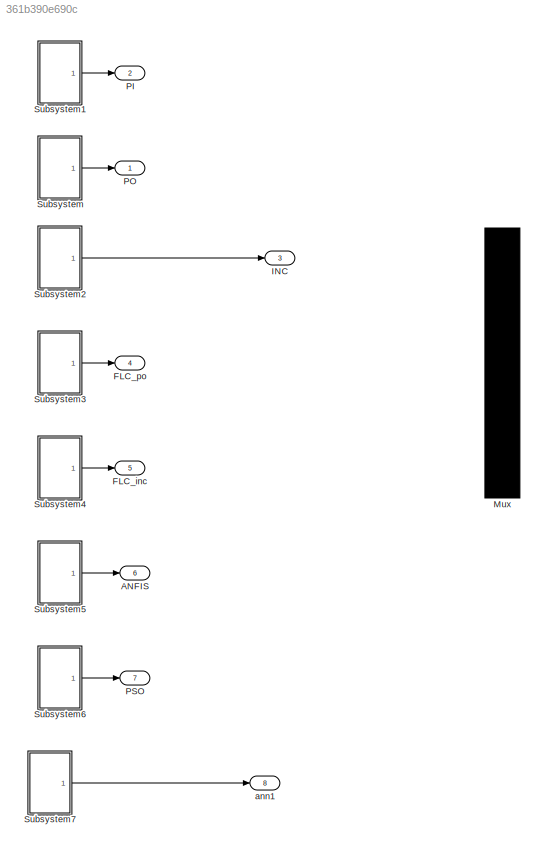
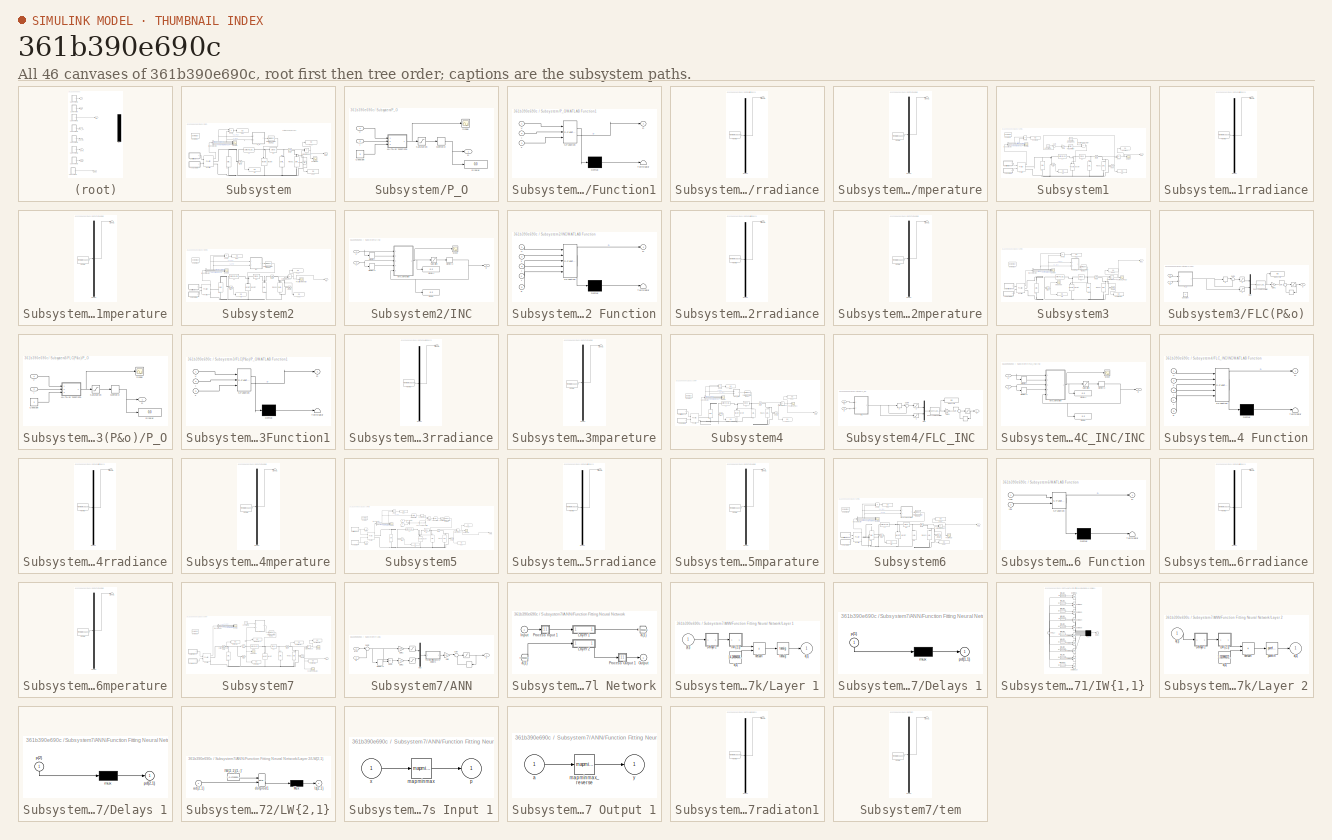
[diagram: thumbnail index - all 46 canvases of the model, root first then tree order]
MODEL slx_361b390e690c
KIND model
CONFIG AbsTol = auto
CONFIG EnableMultiTasking = off
CONFIG FixedStep = auto
CONFIG MaxStep = auto
CONFIG MinStep = auto
CONFIG RelTol = 1e-3
CONFIG SampleTimeConstraint = Unconstrained
CONFIG SolverName = VariableStepAuto
CONFIG StartTime = 0.0
CONFIG StopTime = 10.0
BLOCK [Outport] ANFIS
  Port = 6
BLOCK [Outport] FLC_inc
  Port = 5
BLOCK [Outport] FLC_po
  Port = 4
BLOCK [Outport] INC
  Port = 3
BLOCK [Mux] Mux
  DisplayOption = bar
  Inputs = 3
  Ports = [3, 1]
BLOCK [Outport] PI
  Port = 2
BLOCK [Outport] PO
BLOCK [Outport] PSO
  Port = 7
BLOCK [SubSystem] Subsystem
  Ports = [0, 1]
  RequestExecContextInheritance = off
BLOCK [BusSelector] Subsystem/Bus Selector
  OutputSignals = V_PV,I_PV,Irradiance (W/m2),Temperature (deg C)
  Ports = [1, 4]
BLOCK [Reference] Subsystem/C 1  REF=spsSeriesRLCBranchLib/Series RLC Branch
  NameLocation = left
  Ports = [0, 0, 0, 0, 0, 1, 1]
  SourceBlock = spsSeriesRLCBranchLib/Series RLC Branch
  SourceProductBaseCode = PS
  SourceType = Series RLC Branch
BLOCK [Reference] Subsystem/C 2  REF=spsSeriesRLCBranchLib/Series RLC Branch
  NameLocation = left
  Ports = [0, 0, 0, 0, 0, 1, 1]
  SourceBlock = spsSeriesRLCBranchLib/Series RLC Branch
  SourceProductBaseCode = PS
  SourceType = Series RLC Branch
BLOCK [Reference] Subsystem/D1  REF=spsDiodeLib/Diode
  Ports = [0, 0, 0, 0, 0, 1, 1]
  SourceBlock = spsDiodeLib/Diode
  SourceProductBaseCode = PS
  SourceType = Diode
BLOCK [Reference] Subsystem/Iout1  REF=spsCurrentMeasurementLib/Current Measurement
  Ports = [0, 1, 0, 0, 0, 1, 1]
  SourceBlock = spsCurrentMeasurementLib/Current Measurement
  SourceProductBaseCode = PS
  SourceType = Current Measurement
  UserDataPersistent = on
BLOCK [Reference] Subsystem/L1  REF=spsSeriesRLCBranchLib/Series RLC Branch
  Ports = [0, 0, 0, 0, 0, 1, 1]
  SourceBlock = spsSeriesRLCBranchLib/Series RLC Branch
  SourceProductBaseCode = PS
  SourceType = Series RLC Branch
BLOCK [Reference] Subsystem/Mosfet  REF=spsMosfetLib/Mosfet
  NameLocation = left
  Ports = [1, 0, 0, 0, 0, 1, 1]
  SourceBlock = spsMosfetLib/Mosfet
  SourceProductBaseCode = PS
  SourceType = Mosfet
BLOCK [Outport] Subsystem/Out1
BLOCK [Reference] Subsystem/PV Array  REF=spsPVArrayLib/PV Array
  Ports = [2, 1, 0, 0, 0, 0, 2]
  SourceBlock = spsPVArrayLib/PV Array
  SourceProductBaseCode = PS
  SourceType = PV array
BLOCK [Reference] Subsystem/PWM Generator (DC-DC)1  REF=spsPWMGeneratorDCDCLib/PWM Generator
(DC-DC)
  Ports = [1, 1]
  SourceBlock = spsPWMGeneratorDCDCLib/PWM Generator\n(DC-DC)
  SourceProductBaseCode = PS
  SourceType = PWM Generator (DC-DC)
BLOCK [SubSystem] Subsystem/P_O
  Ports = [2, 1]
  RequestExecContextInheritance = off
BLOCK [Constant] Subsystem/P_O/Constant
  Value = 3
BLOCK [Outport] Subsystem/P_O/D
BLOCK [Display] Subsystem/P_O/Display
  Decimation = 1
  Ports = [1]
BLOCK [Inport] Subsystem/P_O/I
  Port = 2
BLOCK [SubSystem] Subsystem/P_O/MATLAB Function1
  ErrorFcn = Stateflow.Translate.translate
  PermitHierarchicalResolution = ExplicitOnly
  Ports = [3, 1]
  RequestExecContextInheritance = off
  SFBlockType = MATLAB Function
  TreatAsAtomicUnit = on
BLOCK [Demux] Subsystem/P_O/MATLAB Function1/ Demux 
  Outputs = 1
  Ports = [1, 1]
BLOCK [S-Function] Subsystem/P_O/MATLAB Function1/ SFunction 
  EnableBusSupport = on
  FunctionName = sf_sfun
  PortCounts = [3 2]
  Ports = [3, 2]
  SFcnIsStateOwnerBlock = off
  SFunctionDeploymentMode = off
  Tag = Stateflow S-Function 1
BLOCK [Terminator] Subsystem/P_O/MATLAB Function1/ Terminator 
BLOCK [Outport] Subsystem/P_O/MATLAB Function1/D
BLOCK [Inport] Subsystem/P_O/MATLAB Function1/I
  Port = 2
BLOCK [Inport] Subsystem/P_O/MATLAB Function1/T
  Port = 3
BLOCK [Inport] Subsystem/P_O/MATLAB Function1/V
BLOCK [Memory] Subsystem/P_O/Memory2
  InheritSampleTime = on
BLOCK [Saturate] Subsystem/P_O/Saturation
  LowerLimit = 0
  UpperLimit = 0.9
BLOCK [Scope] Subsystem/P_O/Scope
  Floating = off
  NumInputPorts = 1
  Ports = [1]
  ScopeSpecificationString = Simulink.scopes.TimeScopeBlockCfg('CurrentConfiguration', extmgr.ConfigurationSet(extmgr.Configuration('Core','General UI',true),extmgr.Configuration('Core','Source UI',true),extmgr.Configuration('Sources','WiredSimulink',true,'DataLoggingVariableName','ScopeData4','DataLoggingSaveFormat','Array','DataLoggingDecimation','1','DataLoggingDecimateData',true),extmgr.Configuration('Visuals','Time Domai...<+1665ch>
BLOCK [Inport] Subsystem/P_O/V
BLOCK [Display] Subsystem/Pout 
  Decimation = 1
  Ports = [1]
BLOCK [Scope] Subsystem/Pout(p&O)
  Floating = off
  NumInputPorts = 1
  Ports = [1]
  ScopeSpecificationString = Simulink.scopes.TimeScopeBlockCfg('CurrentConfiguration', extmgr.ConfigurationSet(extmgr.Configuration('Core','General UI',true,'FigureColor',[1 1 1]),extmgr.Configuration('Core','Source UI',true),extmgr.Configuration('Sources','WiredSimulink',true,'DataLoggingDecimation','1','DataLoggingDecimateData',true,'DataLoggingSaveFormat','StructureWithTime','DataLogging',true,'DataLoggingVariableName','Sc...<+1896ch>  <repeated x3 — deduplicated; at blocks: Pout(p&O), Pout(Incremental), Pout(FLC_P&O)>
BLOCK [Display] Subsystem/Ppv
  Decimation = 1
  Ports = [1]
BLOCK [Reference] Subsystem/R load 1  REF=spsSeriesRLCBranchLib/Series RLC Branch
  NameLocation = left
  Ports = [0, 0, 0, 0, 0, 1, 1]
  SourceBlock = spsSeriesRLCBranchLib/Series RLC Branch
  SourceProductBaseCode = PS
  SourceType = Series RLC Branch
BLOCK [Scope] Subsystem/Scope
  Floating = off
  NumInputPorts = 4
  Ports = [4]
  ScopeSpecificationString = Simulink.scopes.TimeScopeBlockCfg('CurrentConfiguration', extmgr.ConfigurationSet(extmgr.Configuration('Core','General UI',true),extmgr.Configuration('Core','Source UI',true),extmgr.Configuration('Sources','WiredSimulink',true,'DataLoggingLimitDataPoints',true,'DataLoggingVariableName','ScopeData2','DataLoggingDecimation','1','DataLoggingDecimateData',true,'DataLoggingSaveFormat','Array'),extmgr.C...<+3729ch>
BLOCK [SubSystem] Subsystem/Solar irradiance
  ClipboardFcn = sigbuilder_block('clipboard');
  CloseFcn = sigbuilder_block('close');
  ContinueFcn = sigbuilder_block('continue');
  CopyFcn = sigbuilder_block('copy');
  DeleteFcn = sigbuilder_block('delete');
  LoadFcn = sigbuilder_block('load');
  MaskHideContents = on
  ModelCloseFcn = sigbuilder_block('modelClose');
  NameChangeFcn = sigbuilder_block('namechange');
  OpenFcn = sigbuilder_block('open',[437.25 117.75 550.5 394.5 ]);
  PauseFcn = sigbuilder_block('pause');
  Ports = [0, 1]
  PreSaveFcn = sigbuilder_block('preSave');
  RequestExecContextInheritance = off
  StartFcn = sigbuilder_block('start');
  StopFcn = sigbuilder_block('stop');
  Tag = STV Subsys
BLOCK [Demux] Subsystem/Solar irradiance/Demux
  DisplayOption = none
  Outputs = 1
  Ports = [1, 1]
  Tag = STV Demux
BLOCK [FromWorkspace] Subsystem/Solar irradiance/FromWs
  Tag = STV FromWs
  VariableName = tuvar
BLOCK [Outport] Subsystem/Solar irradiance/Signal 2
  Tag = STV Outport
BLOCK [SubSystem] Subsystem/Temperature
  ClipboardFcn = sigbuilder_block('clipboard');
  CloseFcn = sigbuilder_block('close');
  ContinueFcn = sigbuilder_block('continue');
  CopyFcn = sigbuilder_block('copy');
  DeleteFcn = sigbuilder_block('delete');
  LoadFcn = sigbuilder_block('load');
  MaskHideContents = on
  ModelCloseFcn = sigbuilder_block('modelClose');
  NameChangeFcn = sigbuilder_block('namechange');
  OpenFcn = sigbuilder_block('open',[437.25 117.75 550.5 394.5 ]);
  PauseFcn = sigbuilder_block('pause');
  Ports = [0, 1]
  PreSaveFcn = sigbuilder_block('preSave');
  RequestExecContextInheritance = off
  StartFcn = sigbuilder_block('start');
  StopFcn = sigbuilder_block('stop');
  Tag = STV Subsys
BLOCK [Demux] Subsystem/Temperature/Demux
  DisplayOption = none
  Outputs = 1
  Ports = [1, 1]
  Tag = STV Demux
BLOCK [FromWorkspace] Subsystem/Temperature/FromWs
  Tag = STV FromWs
  VariableName = tuvar
BLOCK [Outport] Subsystem/Temperature/Signal 1
  Tag = STV Outport
BLOCK [Display] Subsystem/Vin
  Decimation = 1
  Ports = [1]
BLOCK [Reference] Subsystem/Vin1  REF=spsVoltageMeasurementLib/Voltage Measurement
  Ports = [0, 1, 0, 0, 0, 2]
  SourceBlock = spsVoltageMeasurementLib/Voltage Measurement
  SourceProductBaseCode = PS
  SourceType = Voltage Measurement
  UserDataPersistent = on
BLOCK [Display] Subsystem/Vout
  Decimation = 1
  Ports = [1]
BLOCK [Reference] Subsystem/Vout 1  REF=spsVoltageMeasurementLib/Voltage Measurement
  Ports = [0, 1, 0, 0, 0, 2]
  SourceBlock = spsVoltageMeasurementLib/Voltage Measurement
  SourceProductBaseCode = PS
  SourceType = Voltage Measurement
  UserDataPersistent = on
BLOCK [Product] Subsystem/output Product
  Ports = [2, 1]
BLOCK [Product] Subsystem/pout1
  Ports = [2, 1]
BLOCK [Reference] Subsystem/powergui  REF=spspowerguiLib/powergui
  Ports = []
  Priority = 1
  SourceBlock = spspowerguiLib/powergui
  SourceProductBaseCode = PS
  SourceType = PSB option menu block
BLOCK [SubSystem] Subsystem1
  Ports = [0, 1]
  RequestExecContextInheritance = off
BLOCK [BusSelector] Subsystem1/Bus Selector
  OutputSignals = V_PV,I_PV,Irradiance (W/m2),Temperature (deg C)
  Ports = [1, 4]
BLOCK [Reference] Subsystem1/C 1  REF=spsSeriesRLCBranchLib/Series RLC Branch
  NameLocation = left
  Ports = [0, 0, 0, 0, 0, 1, 1]
  SourceBlock = spsSeriesRLCBranchLib/Series RLC Branch
  SourceProductBaseCode = PS
  SourceType = Series RLC Branch
BLOCK [Reference] Subsystem1/C 2  REF=spsSeriesRLCBranchLib/Series RLC Branch
  NameLocation = left
  Ports = [0, 0, 0, 0, 0, 1, 1]
  SourceBlock = spsSeriesRLCBranchLib/Series RLC Branch
  SourceProductBaseCode = PS
  SourceType = Series RLC Branch
BLOCK [Constant] Subsystem1/Constant1
  Value = 100
BLOCK [Reference] Subsystem1/D1  REF=spsDiodeLib/Diode
  Ports = [0, 0, 0, 0, 0, 1, 1]
  SourceBlock = spsDiodeLib/Diode
  SourceProductBaseCode = PS
  SourceType = Diode
BLOCK [Gain] Subsystem1/Gain
  Gain = 1/99.3
BLOCK [Reference] Subsystem1/Iout1  REF=spsCurrentMeasurementLib/Current Measurement
  Ports = [0, 1, 0, 0, 0, 1, 1]
  SourceBlock = spsCurrentMeasurementLib/Current Measurement
  SourceProductBaseCode = PS
  SourceType = Current Measurement
  UserDataPersistent = on
BLOCK [Reference] Subsystem1/L1  REF=spsSeriesRLCBranchLib/Series RLC Branch
  Ports = [0, 0, 0, 0, 0, 1, 1]
  SourceBlock = spsSeriesRLCBranchLib/Series RLC Branch
  SourceProductBaseCode = PS
  SourceType = Series RLC Branch
BLOCK [Reference] Subsystem1/Mosfet  REF=spsMosfetLib/Mosfet
  NameLocation = left
  Ports = [1, 0, 0, 0, 0, 1, 1]
  SourceBlock = spsMosfetLib/Mosfet
  SourceProductBaseCode = PS
  SourceType = Mosfet
BLOCK [Reference] Subsystem1/PID Controller  REF=slpidlib/PID Controller
  Ports = [1, 1]
  SourceBlock = slpidlib/PID Controller
  SourceProductBaseCode = SL
  SourceType = PID 1dof
BLOCK [Outport] Subsystem1/PO1
BLOCK [Reference] Subsystem1/PV Array  REF=spsPVArrayLib/PV Array
  Ports = [2, 1, 0, 0, 0, 0, 2]
  SourceBlock = spsPVArrayLib/PV Array
  SourceProductBaseCode = PS
  SourceType = PV array
BLOCK [Reference] Subsystem1/R load 1  REF=spsSeriesRLCBranchLib/Series RLC Branch
  NameLocation = left
  Ports = [0, 0, 0, 0, 0, 1, 1]
  SourceBlock = spsSeriesRLCBranchLib/Series RLC Branch
  SourceProductBaseCode = PS
  SourceType = Series RLC Branch
BLOCK [RelationalOperator] Subsystem1/Relational Operator
  InputSameDT = off
  Operator = <=
  OutDataTypeStr = boolean
  Ports = [2, 1]
  RndMeth = Simplest
BLOCK [Reference] Subsystem1/Repeating Sequence  REF=simulink/Sources/Repeating
Sequence
  Ports = [0, 1]
  SourceBlock = simulink/Sources/Repeating\nSequence
  SourceProductBaseCode = SL
  SourceType = Repeating table
BLOCK [Scope] Subsystem1/Scope
  Floating = off
  NumInputPorts = 4
  Ports = [4]
  ScopeSpecificationString = Simulink.scopes.TimeScopeBlockCfg('CurrentConfiguration', extmgr.ConfigurationSet(extmgr.Configuration('Core','General UI',true),extmgr.Configuration('Core','Source UI',true),extmgr.Configuration('Sources','WiredSimulink',true,'DataLoggingLimitDataPoints',true,'DataLoggingVariableName','ScopeData3','DataLoggingDecimation','1','DataLoggingDecimateData',true,'DataLoggingSaveFormat','Array'),extmgr.C...<+1790ch>
BLOCK [SubSystem] Subsystem1/Solar Irradiance
  ClipboardFcn = sigbuilder_block('clipboard');
  CloseFcn = sigbuilder_block('close');
  ContinueFcn = sigbuilder_block('continue');
  CopyFcn = sigbuilder_block('copy');
  DeleteFcn = sigbuilder_block('delete');
  LoadFcn = sigbuilder_block('load');
  MaskHideContents = on
  ModelCloseFcn = sigbuilder_block('modelClose');
  NameChangeFcn = sigbuilder_block('namechange');
  OpenFcn = sigbuilder_block('open',[437.25 117.75 550.5 394.5 ]);
  PauseFcn = sigbuilder_block('pause');
  Ports = [0, 1]
  PreSaveFcn = sigbuilder_block('preSave');
  RequestExecContextInheritance = off
  StartFcn = sigbuilder_block('start');
  StopFcn = sigbuilder_block('stop');
  Tag = STV Subsys
BLOCK [Demux] Subsystem1/Solar Irradiance/Demux
  DisplayOption = none
  Outputs = 1
  Ports = [1, 1]
  Tag = STV Demux
BLOCK [FromWorkspace] Subsystem1/Solar Irradiance/FromWs
  Tag = STV FromWs
  VariableName = tuvar
BLOCK [Outport] Subsystem1/Solar Irradiance/Signal 2
  Tag = STV Outport
BLOCK [Sum] Subsystem1/Sum
  Inputs = |+-
  Ports = [2, 1]
BLOCK [SubSystem] Subsystem1/Temperature
  ClipboardFcn = sigbuilder_block('clipboard');
  CloseFcn = sigbuilder_block('close');
  ContinueFcn = sigbuilder_block('continue');
  CopyFcn = sigbuilder_block('copy');
  DeleteFcn = sigbuilder_block('delete');
  LoadFcn = sigbuilder_block('load');
  MaskHideContents = on
  ModelCloseFcn = sigbuilder_block('modelClose');
  NameChangeFcn = sigbuilder_block('namechange');
  OpenFcn = sigbuilder_block('open',[437.25 117.75 550.5 394.5 ]);
  PauseFcn = sigbuilder_block('pause');
  Ports = [0, 1]
  PreSaveFcn = sigbuilder_block('preSave');
  RequestExecContextInheritance = off
  StartFcn = sigbuilder_block('start');
  StopFcn = sigbuilder_block('stop');
  Tag = STV Subsys
BLOCK [Demux] Subsystem1/Temperature/Demux
  DisplayOption = none
  Outputs = 1
  Ports = [1, 1]
  Tag = STV Demux
BLOCK [FromWorkspace] Subsystem1/Temperature/FromWs
  Tag = STV FromWs
  VariableName = tuvar
BLOCK [Outport] Subsystem1/Temperature/Signal 1
  Tag = STV Outport
BLOCK [Reference] Subsystem1/Vin  REF=spsVoltageMeasurementLib/Voltage Measurement
  Ports = [0, 1, 0, 0, 0, 2]
  SourceBlock = spsVoltageMeasurementLib/Voltage Measurement
  SourceProductBaseCode = PS
  SourceType = Voltage Measurement
  UserDataPersistent = on
BLOCK [Display] Subsystem1/Vn
  Decimation = 1
  Ports = [1]
BLOCK [Display] Subsystem1/Vo
  Decimation = 1
  Ports = [1]
BLOCK [Reference] Subsystem1/Vout   REF=spsVoltageMeasurementLib/Voltage Measurement
  Ports = [0, 1, 0, 0, 0, 2]
  SourceBlock = spsVoltageMeasurementLib/Voltage Measurement
  SourceProductBaseCode = PS
  SourceType = Voltage Measurement
  UserDataPersistent = on
BLOCK [Product] Subsystem1/pout
  Ports = [2, 1]
BLOCK [Product] Subsystem1/pout1
  Ports = [2, 1]
BLOCK [Display] Subsystem1/poutput
  Decimation = 1
  Ports = [1]
BLOCK [Display] Subsystem1/poutput1
  Decimation = 1
  Ports = [1]
BLOCK [Scope] Subsystem1/power
  Floating = off
  NumInputPorts = 1
  Ports = [1]
  ScopeSpecificationString = Simulink.scopes.TimeScopeBlockCfg('CurrentConfiguration', extmgr.ConfigurationSet(extmgr.Configuration('Core','General UI',true,'FigureColor',[1 1 1]),extmgr.Configuration('Core','Source UI',true),extmgr.Configuration('Sources','WiredSimulink',true,'DataLoggingDecimation','1','DataLoggingDecimateData',true,'DataLoggingSaveFormat','StructureWithTime','DataLogging',true,'DataLoggingVariableName','Sc...<+2474ch>
BLOCK [Reference] Subsystem1/powergui  REF=spspowerguiLib/powergui
  Ports = []
  Priority = 1
  SourceBlock = spspowerguiLib/powergui
  SourceProductBaseCode = PS
  SourceType = PSB option menu block
BLOCK [SubSystem] Subsystem2
  Ports = [0, 1]
  RequestExecContextInheritance = off
BLOCK [BusSelector] Subsystem2/Bus Selector
  OutputSignals = V_PV,I_PV,Irradiance (W/m2),Temperature (deg C)
  Ports = [1, 4]
BLOCK [Reference] Subsystem2/C 1  REF=spsSeriesRLCBranchLib/Series RLC Branch
  NameLocation = left
  Ports = [0, 0, 0, 0, 0, 1, 1]
  SourceBlock = spsSeriesRLCBranchLib/Series RLC Branch
  SourceProductBaseCode = PS
  SourceType = Series RLC Branch
BLOCK [Reference] Subsystem2/C 2  REF=spsSeriesRLCBranchLib/Series RLC Branch
  NameLocation = left
  Ports = [0, 0, 0, 0, 0, 1, 1]
  SourceBlock = spsSeriesRLCBranchLib/Series RLC Branch
  SourceProductBaseCode = PS
  SourceType = Series RLC Branch
BLOCK [Reference] Subsystem2/D1  REF=spsDiodeLib/Diode
  Ports = [0, 0, 0, 0, 0, 1, 1]
  SourceBlock = spsDiodeLib/Diode
  SourceProductBaseCode = PS
  SourceType = Diode
BLOCK [SubSystem] Subsystem2/INC
  Ports = [2, 1]
  RequestExecContextInheritance = off
BLOCK [Outport] Subsystem2/INC/D
BLOCK [Display] Subsystem2/INC/Display
  Decimation = 1
  Ports = [1]
BLOCK [Display] Subsystem2/INC/Display1
  Decimation = 1
  Ports = [1]
BLOCK [Inport] Subsystem2/INC/I
  Port = 2
BLOCK [SubSystem] Subsystem2/INC/MATLAB Function
  ErrorFcn = Stateflow.Translate.translate
  PermitHierarchicalResolution = ExplicitOnly
  Ports = [5, 1]
  RequestExecContextInheritance = off
  SFBlockType = MATLAB Function
  TreatAsAtomicUnit = on
BLOCK [Demux] Subsystem2/INC/MATLAB Function/ Demux 
  Outputs = 1
  Ports = [1, 1]
BLOCK [S-Function] Subsystem2/INC/MATLAB Function/ SFunction 
  EnableBusSupport = on
  FunctionName = sf_sfun
  PortCounts = [5 2]
  Ports = [5, 2]
  SFcnIsStateOwnerBlock = off
  SFunctionDeploymentMode = off
  Tag = Stateflow S-Function 2
BLOCK [Terminator] Subsystem2/INC/MATLAB Function/ Terminator 
BLOCK [Outport] Subsystem2/INC/MATLAB Function/D
BLOCK [Inport] Subsystem2/INC/MATLAB Function/I
  Port = 3
BLOCK [Inport] Subsystem2/INC/MATLAB Function/V
BLOCK [Inport] Subsystem2/INC/MATLAB Function/d
  Port = 5
BLOCK [Inport] Subsystem2/INC/MATLAB Function/i
  Port = 4
BLOCK [Inport] Subsystem2/INC/MATLAB Function/v
  Port = 2
BLOCK [Memory] Subsystem2/INC/Memory
  InheritSampleTime = on
BLOCK [Memory] Subsystem2/INC/Memory1
  InheritSampleTime = on
BLOCK [Memory] Subsystem2/INC/Memory2
  InheritSampleTime = on
BLOCK [Saturate] Subsystem2/INC/Saturation
  LowerLimit = 0
  UpperLimit = 0.9
BLOCK [Scope] Subsystem2/INC/Scope
  Floating = off
  NumInputPorts = 1
  Ports = [1]
  ScopeSpecificationString = C++SS(StrPVP('Location','[1, 49, 1909, 1159]'),StrPVP('Open','off'),MxPVP('AxesTitles',54,'struct(''axes1'',''%<SignalLabel>'')'),MxPVP('ScopeGraphics',57,'struct(''FigureColor'',''[0.5 0.5 0.5]'',''AxesColor'',''[0 0 0]'',''AxesTickColor'',''[1 1 1]'',''LineColors'',''[1 1 0;1 0 1;0 1 1;1 0 0;0 1 0;0 0 1]'',''LineStyles'',''-|-|-|-|-|-'',''LineWidths'',''[0.5 0.5 0.5 0.5 0.5 0.5]'',''MarkerStyles...<+237ch>
BLOCK [Inport] Subsystem2/INC/V
BLOCK [Reference] Subsystem2/Iout1  REF=spsCurrentMeasurementLib/Current Measurement
  Ports = [0, 1, 0, 0, 0, 1, 1]
  SourceBlock = spsCurrentMeasurementLib/Current Measurement
  SourceProductBaseCode = PS
  SourceType = Current Measurement
  UserDataPersistent = on
BLOCK [Reference] Subsystem2/L1  REF=spsSeriesRLCBranchLib/Series RLC Branch
  Ports = [0, 0, 0, 0, 0, 1, 1]
  SourceBlock = spsSeriesRLCBranchLib/Series RLC Branch
  SourceProductBaseCode = PS
  SourceType = Series RLC Branch
BLOCK [Reference] Subsystem2/Mosfet  REF=spsMosfetLib/Mosfet
  NameLocation = left
  Ports = [1, 0, 0, 0, 0, 1, 1]
  SourceBlock = spsMosfetLib/Mosfet
  SourceProductBaseCode = PS
  SourceType = Mosfet
BLOCK [Outport] Subsystem2/PI1
BLOCK [Reference] Subsystem2/PV Array  REF=spsPVArrayLib/PV Array
  Ports = [2, 1, 0, 0, 0, 0, 2]
  SourceBlock = spsPVArrayLib/PV Array
  SourceProductBaseCode = PS
  SourceType = PV array
BLOCK [Reference] Subsystem2/PWM Generator (DC-DC)1  REF=spsPWMGeneratorDCDCLib/PWM Generator
(DC-DC)
  Ports = [1, 1]
  SourceBlock = spsPWMGeneratorDCDCLib/PWM Generator\n(DC-DC)
  SourceProductBaseCode = PS
  SourceType = PWM Generator (DC-DC)
BLOCK [Display] Subsystem2/Pout 
  Decimation = 1
  Ports = [1]
BLOCK [Scope] Subsystem2/Pout(Incremental)
  Floating = off
  NumInputPorts = 1
  Ports = [1]
BLOCK [Display] Subsystem2/Ppv
  Decimation = 1
  Ports = [1]
BLOCK [Reference] Subsystem2/R load 1  REF=spsSeriesRLCBranchLib/Series RLC Branch
  NameLocation = left
  Ports = [0, 0, 0, 0, 0, 1, 1]
  SourceBlock = spsSeriesRLCBranchLib/Series RLC Branch
  SourceProductBaseCode = PS
  SourceType = Series RLC Branch
BLOCK [Scope] Subsystem2/Scope
  Floating = off
  NumInputPorts = 4
  Ports = [4]
  ScopeSpecificationString = Simulink.scopes.TimeScopeBlockCfg('CurrentConfiguration', extmgr.ConfigurationSet(extmgr.Configuration('Core','General UI',true),extmgr.Configuration('Core','Source UI',true),extmgr.Configuration('Sources','WiredSimulink',true,'DataLoggingLimitDataPoints',true,'DataLoggingVariableName','ScopeData6','DataLoggingDecimation','1','DataLoggingDecimateData',true,'DataLoggingSaveFormat','Array'),extmgr.C...<+1790ch>
BLOCK [SubSystem] Subsystem2/Solar irradiance
  ClipboardFcn = sigbuilder_block('clipboard');
  CloseFcn = sigbuilder_block('close');
  ContinueFcn = sigbuilder_block('continue');
  CopyFcn = sigbuilder_block('copy');
  DeleteFcn = sigbuilder_block('delete');
  LoadFcn = sigbuilder_block('load');
  MaskHideContents = on
  ModelCloseFcn = sigbuilder_block('modelClose');
  NameChangeFcn = sigbuilder_block('namechange');
  OpenFcn = sigbuilder_block('open',[437.25 117.75 550.5 394.5 ]);
  PauseFcn = sigbuilder_block('pause');
  Ports = [0, 1]
  PreSaveFcn = sigbuilder_block('preSave');
  RequestExecContextInheritance = off
  StartFcn = sigbuilder_block('start');
  StopFcn = sigbuilder_block('stop');
  Tag = STV Subsys
BLOCK [Demux] Subsystem2/Solar irradiance/Demux
  DisplayOption = none
  Outputs = 1
  Ports = [1, 1]
  Tag = STV Demux
BLOCK [FromWorkspace] Subsystem2/Solar irradiance/FromWs
  Tag = STV FromWs
  VariableName = tuvar
BLOCK [Outport] Subsystem2/Solar irradiance/Signal 2
  Tag = STV Outport
BLOCK [SubSystem] Subsystem2/Temperature
  ClipboardFcn = sigbuilder_block('clipboard');
  CloseFcn = sigbuilder_block('close');
  ContinueFcn = sigbuilder_block('continue');
  CopyFcn = sigbuilder_block('copy');
  DeleteFcn = sigbuilder_block('delete');
  LoadFcn = sigbuilder_block('load');
  MaskHideContents = on
  ModelCloseFcn = sigbuilder_block('modelClose');
  NameChangeFcn = sigbuilder_block('namechange');
  OpenFcn = sigbuilder_block('open',[437.25 117.75 550.5 394.5 ]);
  PauseFcn = sigbuilder_block('pause');
  Ports = [0, 1]
  PreSaveFcn = sigbuilder_block('preSave');
  RequestExecContextInheritance = off
  StartFcn = sigbuilder_block('start');
  StopFcn = sigbuilder_block('stop');
  Tag = STV Subsys
BLOCK [Demux] Subsystem2/Temperature/Demux
  DisplayOption = none
  Outputs = 1
  Ports = [1, 1]
  Tag = STV Demux
BLOCK [FromWorkspace] Subsystem2/Temperature/FromWs
  Tag = STV FromWs
  VariableName = tuvar
BLOCK [Outport] Subsystem2/Temperature/Signal 1
  Tag = STV Outport
BLOCK [Display] Subsystem2/Vin 
  Decimation = 1
  Ports = [1]
BLOCK [Reference] Subsystem2/Vin1  REF=spsVoltageMeasurementLib/Voltage Measurement
  Ports = [0, 1, 0, 0, 0, 2]
  SourceBlock = spsVoltageMeasurementLib/Voltage Measurement
  SourceProductBaseCode = PS
  SourceType = Voltage Measurement
  UserDataPersistent = on
BLOCK [Display] Subsystem2/Vout 
  Decimation = 1
  Ports = [1]
BLOCK [Reference] Subsystem2/Vout 1  REF=spsVoltageMeasurementLib/Voltage Measurement
  Ports = [0, 1, 0, 0, 0, 2]
  SourceBlock = spsVoltageMeasurementLib/Voltage Measurement
  SourceProductBaseCode = PS
  SourceType = Voltage Measurement
  UserDataPersistent = on
BLOCK [Product] Subsystem2/output Product
  Ports = [2, 1]
BLOCK [Product] Subsystem2/pout1
  Ports = [2, 1]
BLOCK [Reference] Subsystem2/powergui  REF=spspowerguiLib/powergui
  Ports = []
  Priority = 1
  SourceBlock = spspowerguiLib/powergui
  SourceProductBaseCode = PS
  SourceType = PSB option menu block
BLOCK [SubSystem] Subsystem3
  Ports = [0, 1]
  RequestExecContextInheritance = off
BLOCK [Scope] Subsystem3/ Pout(FLC_P&O)
  Floating = off
  NumInputPorts = 1
  Ports = [1]
BLOCK [BusSelector] Subsystem3/Bus Selector
  OutputSignals = V_PV,I_PV,Irradiance (W/m2),Temperature (deg C)
  Ports = [1, 4]
BLOCK [Reference] Subsystem3/C 1  REF=spsSeriesRLCBranchLib/Series RLC Branch
  NameLocation = left
  Ports = [0, 0, 0, 0, 0, 1, 1]
  SourceBlock = spsSeriesRLCBranchLib/Series RLC Branch
  SourceProductBaseCode = PS
  SourceType = Series RLC Branch
BLOCK [Reference] Subsystem3/C 2  REF=spsSeriesRLCBranchLib/Series RLC Branch
  NameLocation = left
  Ports = [0, 0, 0, 0, 0, 1, 1]
  SourceBlock = spsSeriesRLCBranchLib/Series RLC Branch
  SourceProductBaseCode = PS
  SourceType = Series RLC Branch
BLOCK [Reference] Subsystem3/D1  REF=spsDiodeLib/Diode
  Ports = [0, 0, 0, 0, 0, 1, 1]
  SourceBlock = spsDiodeLib/Diode
  SourceProductBaseCode = PS
  SourceType = Diode
BLOCK [SubSystem] Subsystem3/FLC(P&o)
  Ports = [2, 1]
  RequestExecContextInheritance = off
BLOCK [Saturate] Subsystem3/FLC(P&o)/ 
  LowerLimit = 0.1
  UpperLimit = 0.7
BLOCK [Memory] Subsystem3/FLC(P&o)/  
  InheritSampleTime = on
  NameLocation = top
BLOCK [Memory] Subsystem3/FLC(P&o)/  3
  InheritSampleTime = on
  InitialCondition = 0.01
BLOCK [Saturate] Subsystem3/FLC(P&o)/ 1
  LowerLimit = 0
  UpperLimit = 1
BLOCK [Saturate] Subsystem3/FLC(P&o)/ 2
  LowerLimit = 0
  UpperLimit = 1
BLOCK [Constant] Subsystem3/FLC(P&o)/Constant
BLOCK [Outport] Subsystem3/FLC(P&o)/D
BLOCK [Reference] Subsystem3/FLC(P&o)/Fuzzy Logic Controller  REF=fuzblock/Fuzzy Logic   (lib defined in mdl_858b3b3e7478)
Controller
  Ports = [1, 1]
  SourceBlock = fuzblock/Fuzzy Logic \nController
  SourceProductBaseCode = FL
  SourceType = Fuzzy Inference System
BLOCK [Gain] Subsystem3/FLC(P&o)/Gain1
  Gain = 0.2
BLOCK [Inport] Subsystem3/FLC(P&o)/I2
BLOCK [Mux] Subsystem3/FLC(P&o)/Mux
  DisplayOption = bar
  Inputs = 2
  Ports = [2, 1]
BLOCK [SubSystem] Subsystem3/FLC(P&o)/P_O
  Ports = [2, 1]
  RequestExecContextInheritance = off
BLOCK [Constant] Subsystem3/FLC(P&o)/P_O/Constant
  Value = 3
BLOCK [Outport] Subsystem3/FLC(P&o)/P_O/D
BLOCK [Display] Subsystem3/FLC(P&o)/P_O/Display
  Decimation = 1
  Ports = [1]
BLOCK [Inport] Subsystem3/FLC(P&o)/P_O/I
  Port = 2
BLOCK [SubSystem] Subsystem3/FLC(P&o)/P_O/MATLAB Function1
  ErrorFcn = Stateflow.Translate.translate
  PermitHierarchicalResolution = ExplicitOnly
  Ports = [3, 1]
  RequestExecContextInheritance = off
  SFBlockType = MATLAB Function
  TreatAsAtomicUnit = on
BLOCK [Demux] Subsystem3/FLC(P&o)/P_O/MATLAB Function1/ Demux 
  Outputs = 1
  Ports = [1, 1]
BLOCK [S-Function] Subsystem3/FLC(P&o)/P_O/MATLAB Function1/ SFunction 
  EnableBusSupport = on
  FunctionName = sf_sfun
  PortCounts = [3 2]
  Ports = [3, 2]
  SFcnIsStateOwnerBlock = off
  SFunctionDeploymentMode = off
  Tag = Stateflow S-Function 3
BLOCK [Terminator] Subsystem3/FLC(P&o)/P_O/MATLAB Function1/ Terminator 
BLOCK [Outport] Subsystem3/FLC(P&o)/P_O/MATLAB Function1/D
BLOCK [Inport] Subsystem3/FLC(P&o)/P_O/MATLAB Function1/I
  Port = 2
BLOCK [Inport] Subsystem3/FLC(P&o)/P_O/MATLAB Function1/T
  Port = 3
BLOCK [Inport] Subsystem3/FLC(P&o)/P_O/MATLAB Function1/V
BLOCK [Memory] Subsystem3/FLC(P&o)/P_O/Memory2
  InheritSampleTime = on
BLOCK [Saturate] Subsystem3/FLC(P&o)/P_O/Saturation
  LowerLimit = 0
  UpperLimit = 0.9
BLOCK [Scope] Subsystem3/FLC(P&o)/P_O/Scope
  Floating = off
  NumInputPorts = 1
  Ports = [1]
  ScopeSpecificationString = Simulink.scopes.TimeScopeBlockCfg('CurrentConfiguration', extmgr.ConfigurationSet(extmgr.Configuration('Core','General UI',true),extmgr.Configuration('Core','Source UI',true),extmgr.Configuration('Sources','WiredSimulink',true,'DataLoggingVariableName','ScopeData4','DataLoggingSaveFormat','Array','DataLoggingDecimation','1','DataLoggingDecimateData',true),extmgr.Configuration('Visuals','Time Domai...<+1665ch>
BLOCK [Inport] Subsystem3/FLC(P&o)/P_O/V
BLOCK [Sum] Subsystem3/FLC(P&o)/Sum
  Ports = [2, 1]
BLOCK [Sum] Subsystem3/FLC(P&o)/Sum4
  Inputs = |+-
  Ports = [2, 1]
BLOCK [Display] Subsystem3/FLC(P&o)/duty cycle
  Decimation = 1
  Ports = [1]
BLOCK [Inport] Subsystem3/FLC(P&o)/v2
  Port = 2
BLOCK [Outport] Subsystem3/INC1
BLOCK [Reference] Subsystem3/Iout1  REF=spsCurrentMeasurementLib/Current Measurement
  Ports = [0, 1, 0, 0, 0, 1, 1]
  SourceBlock = spsCurrentMeasurementLib/Current Measurement
  SourceProductBaseCode = PS
  SourceType = Current Measurement
  UserDataPersistent = on
BLOCK [Reference] Subsystem3/L1  REF=spsSeriesRLCBranchLib/Series RLC Branch
  Ports = [0, 0, 0, 0, 0, 1, 1]
  SourceBlock = spsSeriesRLCBranchLib/Series RLC Branch
  SourceProductBaseCode = PS
  SourceType = Series RLC Branch
BLOCK [Reference] Subsystem3/Mosfet  REF=spsMosfetLib/Mosfet
  NameLocation = left
  Ports = [1, 0, 0, 0, 0, 1, 1]
  SourceBlock = spsMosfetLib/Mosfet
  SourceProductBaseCode = PS
  SourceType = Mosfet
BLOCK [Reference] Subsystem3/PV Array  REF=spsPVArrayLib/PV Array
  Ports = [2, 1, 0, 0, 0, 0, 2]
  SourceBlock = spsPVArrayLib/PV Array
  SourceProductBaseCode = PS
  SourceType = PV array
BLOCK [Reference] Subsystem3/PWM Generator (DC-DC)  REF=spsPWMGeneratorDCDCLib/PWM Generator
(DC-DC)
  Ports = [1, 1]
  SourceBlock = spsPWMGeneratorDCDCLib/PWM Generator\n(DC-DC)
  SourceProductBaseCode = PS
  SourceType = PWM Generator (DC-DC)
BLOCK [Display] Subsystem3/Pout 
  Decimation = 1
  Ports = [1]
BLOCK [Display] Subsystem3/Ppv
  Decimation = 1
  Ports = [1]
BLOCK [Reference] Subsystem3/R load 1  REF=spsSeriesRLCBranchLib/Series RLC Branch
  NameLocation = left
  Ports = [0, 0, 0, 0, 0, 1, 1]
  SourceBlock = spsSeriesRLCBranchLib/Series RLC Branch
  SourceProductBaseCode = PS
  SourceType = Series RLC Branch
BLOCK [Scope] Subsystem3/Scope
  Floating = off
  NumInputPorts = 4
  Ports = [4]
  ScopeSpecificationString = Simulink.scopes.TimeScopeBlockCfg('CurrentConfiguration', extmgr.ConfigurationSet(extmgr.Configuration('Core','General UI',true),extmgr.Configuration('Core','Source UI',true),extmgr.Configuration('Sources','WiredSimulink',true,'DataLoggingLimitDataPoints',true,'DataLoggingVariableName','ScopeData8','DataLoggingDecimation','1','DataLoggingDecimateData',true,'DataLoggingSaveFormat','Array'),extmgr.C...<+3842ch>
BLOCK [SubSystem] Subsystem3/Solae irradiance
  ClipboardFcn = sigbuilder_block('clipboard');
  CloseFcn = sigbuilder_block('close');
  ContinueFcn = sigbuilder_block('continue');
  CopyFcn = sigbuilder_block('copy');
  DeleteFcn = sigbuilder_block('delete');
  LoadFcn = sigbuilder_block('load');
  MaskHideContents = on
  ModelCloseFcn = sigbuilder_block('modelClose');
  NameChangeFcn = sigbuilder_block('namechange');
  OpenFcn = sigbuilder_block('open',[437.25 117.75 550.5 394.5 ]);
  PauseFcn = sigbuilder_block('pause');
  Ports = [0, 1]
  PreSaveFcn = sigbuilder_block('preSave');
  RequestExecContextInheritance = off
  StartFcn = sigbuilder_block('start');
  StopFcn = sigbuilder_block('stop');
  Tag = STV Subsys
BLOCK [Demux] Subsystem3/Solae irradiance/Demux
  DisplayOption = none
  Outputs = 1
  Ports = [1, 1]
  Tag = STV Demux
BLOCK [FromWorkspace] Subsystem3/Solae irradiance/FromWs
  Tag = STV FromWs
  VariableName = tuvar
BLOCK [Outport] Subsystem3/Solae irradiance/Signal 2
  Tag = STV Outport
BLOCK [SubSystem] Subsystem3/Tempareture
  ClipboardFcn = sigbuilder_block('clipboard');
  CloseFcn = sigbuilder_block('close');
  ContinueFcn = sigbuilder_block('continue');
  CopyFcn = sigbuilder_block('copy');
  DeleteFcn = sigbuilder_block('delete');
  LoadFcn = sigbuilder_block('load');
  MaskHideContents = on
  ModelCloseFcn = sigbuilder_block('modelClose');
  NameChangeFcn = sigbuilder_block('namechange');
  OpenFcn = sigbuilder_block('open',[437.25 117.75 550.5 394.5 ]);
  PauseFcn = sigbuilder_block('pause');
  Ports = [0, 1]
  PreSaveFcn = sigbuilder_block('preSave');
  RequestExecContextInheritance = off
  StartFcn = sigbuilder_block('start');
  StopFcn = sigbuilder_block('stop');
  Tag = STV Subsys
BLOCK [Demux] Subsystem3/Tempareture/Demux
  DisplayOption = none
  Outputs = 1
  Ports = [1, 1]
  Tag = STV Demux
BLOCK [FromWorkspace] Subsystem3/Tempareture/FromWs
  Tag = STV FromWs
  VariableName = tuvar
BLOCK [Outport] Subsystem3/Tempareture/Signal 1
  Tag = STV Outport
BLOCK [Display] Subsystem3/Vin 
  Decimation = 1
  Ports = [1]
BLOCK [Scope] Subsystem3/Vin Scope
  Floating = off
  NumInputPorts = 1
  Ports = [1]
  ScopeSpecificationString = Simulink.scopes.TimeScopeBlockCfg('CurrentConfiguration', extmgr.ConfigurationSet(extmgr.Configuration('Core','General UI',true),extmgr.Configuration('Core','Source UI',true),extmgr.Configuration('Sources','WiredSimulink',true,'DataLoggingVariableName','ScopeData9','DataLoggingLimitDataPoints',true,'DataLoggingSaveFormat','Array','DataLoggingDecimation','1','DataLoggingDecimateData',true),extmgr.C...<+1764ch>
BLOCK [Reference] Subsystem3/Vin1  REF=spsVoltageMeasurementLib/Voltage Measurement
  Ports = [0, 1, 0, 0, 0, 2]
  SourceBlock = spsVoltageMeasurementLib/Voltage Measurement
  SourceProductBaseCode = PS
  SourceType = Voltage Measurement
  UserDataPersistent = on
BLOCK [Reference] Subsystem3/Vout 1  REF=spsVoltageMeasurementLib/Voltage Measurement
  Ports = [0, 1, 0, 0, 0, 2]
  SourceBlock = spsVoltageMeasurementLib/Voltage Measurement
  SourceProductBaseCode = PS
  SourceType = Voltage Measurement
  UserDataPersistent = on
BLOCK [Display] Subsystem3/Vout Display
  Decimation = 1
  Ports = [1]
BLOCK [Product] Subsystem3/output Product
  Ports = [2, 1]
BLOCK [Product] Subsystem3/pout1
  Ports = [2, 1]
BLOCK [Reference] Subsystem3/powergui  REF=spspowerguiLib/powergui
  Ports = []
  Priority = 1
  SourceBlock = spspowerguiLib/powergui
  SourceProductBaseCode = PS
  SourceType = PSB option menu block
BLOCK [SubSystem] Subsystem4
  Ports = [0, 1]
  RequestExecContextInheritance = off
BLOCK [BusSelector] Subsystem4/Bus Selector
  OutputSignals = V_PV,I_PV,Irradiance (W/m2),Temperature (deg C)
  Ports = [1, 4]
BLOCK [Reference] Subsystem4/C 1  REF=spsSeriesRLCBranchLib/Series RLC Branch
  NameLocation = left
  Ports = [0, 0, 0, 0, 0, 1, 1]
  SourceBlock = spsSeriesRLCBranchLib/Series RLC Branch
  SourceProductBaseCode = PS
  SourceType = Series RLC Branch
BLOCK [Reference] Subsystem4/C 2  REF=spsSeriesRLCBranchLib/Series RLC Branch
  NameLocation = left
  Ports = [0, 0, 0, 0, 0, 1, 1]
  SourceBlock = spsSeriesRLCBranchLib/Series RLC Branch
  SourceProductBaseCode = PS
  SourceType = Series RLC Branch
BLOCK [Reference] Subsystem4/D1  REF=spsDiodeLib/Diode
  Ports = [0, 0, 0, 0, 0, 1, 1]
  SourceBlock = spsDiodeLib/Diode
  SourceProductBaseCode = PS
  SourceType = Diode
BLOCK [SubSystem] Subsystem4/FLC_INC
  Ports = [2, 1]
  RequestExecContextInheritance = off
BLOCK [Saturate] Subsystem4/FLC_INC/ 
  LowerLimit = 0.1
  UpperLimit = 0.7
BLOCK [Memory] Subsystem4/FLC_INC/  
  InheritSampleTime = on
  NameLocation = top
BLOCK [Memory] Subsystem4/FLC_INC/  3
  InheritSampleTime = on
  InitialCondition = 0.01
BLOCK [Saturate] Subsystem4/FLC_INC/ 1
  LowerLimit = 0
  UpperLimit = 1
BLOCK [Saturate] Subsystem4/FLC_INC/ 2
  LowerLimit = 0
  UpperLimit = 1
BLOCK [Outport] Subsystem4/FLC_INC/D
BLOCK [Reference] Subsystem4/FLC_INC/Fuzzy Logic Controller  REF=fuzblock/Fuzzy Logic   (lib defined in mdl_858b3b3e7478)
Controller
  Ports = [1, 1]
  SourceBlock = fuzblock/Fuzzy Logic \nController
  SourceProductBaseCode = FL
  SourceType = Fuzzy Inference System
BLOCK [Gain] Subsystem4/FLC_INC/Gain1
  Gain = 0.2
BLOCK [Inport] Subsystem4/FLC_INC/I2
BLOCK [SubSystem] Subsystem4/FLC_INC/INC
  Ports = [2, 1]
  RequestExecContextInheritance = off
BLOCK [Outport] Subsystem4/FLC_INC/INC/D
BLOCK [Display] Subsystem4/FLC_INC/INC/Display
  Decimation = 1
  Ports = [1]
BLOCK [Display] Subsystem4/FLC_INC/INC/Display1
  Decimation = 1
  Ports = [1]
BLOCK [Inport] Subsystem4/FLC_INC/INC/I
  Port = 2
BLOCK [SubSystem] Subsystem4/FLC_INC/INC/MATLAB Function
  ErrorFcn = Stateflow.Translate.translate
  PermitHierarchicalResolution = ExplicitOnly
  Ports = [5, 1]
  RequestExecContextInheritance = off
  SFBlockType = MATLAB Function
  TreatAsAtomicUnit = on
BLOCK [Demux] Subsystem4/FLC_INC/INC/MATLAB Function/ Demux 
  Outputs = 1
  Ports = [1, 1]
BLOCK [S-Function] Subsystem4/FLC_INC/INC/MATLAB Function/ SFunction 
  EnableBusSupport = on
  FunctionName = sf_sfun
  PortCounts = [5 2]
  Ports = [5, 2]
  SFcnIsStateOwnerBlock = off
  SFunctionDeploymentMode = off
  Tag = Stateflow S-Function 4
BLOCK [Terminator] Subsystem4/FLC_INC/INC/MATLAB Function/ Terminator 
BLOCK [Outport] Subsystem4/FLC_INC/INC/MATLAB Function/D
BLOCK [Inport] Subsystem4/FLC_INC/INC/MATLAB Function/I
  Port = 3
BLOCK [Inport] Subsystem4/FLC_INC/INC/MATLAB Function/V
BLOCK [Inport] Subsystem4/FLC_INC/INC/MATLAB Function/d
  Port = 5
BLOCK [Inport] Subsystem4/FLC_INC/INC/MATLAB Function/i
  Port = 4
BLOCK [Inport] Subsystem4/FLC_INC/INC/MATLAB Function/v
  Port = 2
BLOCK [Memory] Subsystem4/FLC_INC/INC/Memory
  InheritSampleTime = on
BLOCK [Memory] Subsystem4/FLC_INC/INC/Memory1
  InheritSampleTime = on
BLOCK [Memory] Subsystem4/FLC_INC/INC/Memory2
  InheritSampleTime = on
BLOCK [Saturate] Subsystem4/FLC_INC/INC/Saturation
  LowerLimit = 0
  UpperLimit = 0.9
BLOCK [Scope] Subsystem4/FLC_INC/INC/Scope
  Floating = off
  NumInputPorts = 1
  Ports = [1]
  ScopeSpecificationString = C++SS(StrPVP('Location','[1, 49, 1909, 1159]'),StrPVP('Open','off'),MxPVP('AxesTitles',54,'struct(''axes1'',''%<SignalLabel>'')'),MxPVP('ScopeGraphics',57,'struct(''FigureColor'',''[0.5 0.5 0.5]'',''AxesColor'',''[0 0 0]'',''AxesTickColor'',''[1 1 1]'',''LineColors'',''[1 1 0;1 0 1;0 1 1;1 0 0;0 1 0;0 0 1]'',''LineStyles'',''-|-|-|-|-|-'',''LineWidths'',''[0.5 0.5 0.5 0.5 0.5 0.5]'',''MarkerStyles...<+237ch>
BLOCK [Inport] Subsystem4/FLC_INC/INC/V
BLOCK [Mux] Subsystem4/FLC_INC/Mux
  DisplayOption = bar
  Inputs = 2
  Ports = [2, 1]
BLOCK [Sum] Subsystem4/FLC_INC/Sum
  Ports = [2, 1]
BLOCK [Sum] Subsystem4/FLC_INC/Sum4
  Inputs = |+-
  Ports = [2, 1]
BLOCK [Display] Subsystem4/FLC_INC/duty cycle
  Decimation = 1
  Ports = [1]
BLOCK [Inport] Subsystem4/FLC_INC/v2
  Port = 2
BLOCK [Reference] Subsystem4/Iout1  REF=spsCurrentMeasurementLib/Current Measurement
  Ports = [0, 1, 0, 0, 0, 1, 1]
  SourceBlock = spsCurrentMeasurementLib/Current Measurement
  SourceProductBaseCode = PS
  SourceType = Current Measurement
  UserDataPersistent = on
BLOCK [Reference] Subsystem4/L1  REF=spsSeriesRLCBranchLib/Series RLC Branch
  Ports = [0, 0, 0, 0, 0, 1, 1]
  SourceBlock = spsSeriesRLCBranchLib/Series RLC Branch
  SourceProductBaseCode = PS
  SourceType = Series RLC Branch
BLOCK [Reference] Subsystem4/Mosfet  REF=spsMosfetLib/Mosfet
  NameLocation = left
  Ports = [1, 0, 0, 0, 0, 1, 1]
  SourceBlock = spsMosfetLib/Mosfet
  SourceProductBaseCode = PS
  SourceType = Mosfet
BLOCK [Outport] Subsystem4/Out1
BLOCK [Reference] Subsystem4/PV Array  REF=spsPVArrayLib/PV Array
  Ports = [2, 1, 0, 0, 0, 0, 2]
  SourceBlock = spsPVArrayLib/PV Array
  SourceProductBaseCode = PS
  SourceType = PV array
BLOCK [Reference] Subsystem4/PWM Generator (DC-DC)  REF=spsPWMGeneratorDCDCLib/PWM Generator
(DC-DC)
  Ports = [1, 1]
  SourceBlock = spsPWMGeneratorDCDCLib/PWM Generator\n(DC-DC)
  SourceProductBaseCode = PS
  SourceType = PWM Generator (DC-DC)
BLOCK [Display] Subsystem4/Pout 
  Decimation = 1
  Ports = [1]
BLOCK [Scope] Subsystem4/Pout(FLC_Inc)
  Floating = off
  NumInputPorts = 1
  Ports = [1]
  ScopeSpecificationString = Simulink.scopes.TimeScopeBlockCfg('CurrentConfiguration', extmgr.ConfigurationSet(extmgr.Configuration('Core','General UI',true,'FigureColor',[1 1 1]),extmgr.Configuration('Core','Source UI',true),extmgr.Configuration('Sources','WiredSimulink',true,'DataLoggingDecimation','1','DataLoggingDecimateData',true,'DataLoggingSaveFormat','StructureWithTime','DataLogging',true,'DataLoggingVariableName','Sc...<+1895ch>
BLOCK [Display] Subsystem4/Ppv
  Decimation = 1
  Ports = [1]
BLOCK [Reference] Subsystem4/R load 1  REF=spsSeriesRLCBranchLib/Series RLC Branch
  NameLocation = left
  Ports = [0, 0, 0, 0, 0, 1, 1]
  SourceBlock = spsSeriesRLCBranchLib/Series RLC Branch
  SourceProductBaseCode = PS
  SourceType = Series RLC Branch
BLOCK [Scope] Subsystem4/Scope
  Floating = off
  NumInputPorts = 4
  Ports = [4]
  ScopeSpecificationString = Simulink.scopes.TimeScopeBlockCfg('CurrentConfiguration', extmgr.ConfigurationSet(extmgr.Configuration('Core','General UI',true),extmgr.Configuration('Core','Source UI',true),extmgr.Configuration('Sources','WiredSimulink',true,'DataLoggingLimitDataPoints',true,'DataLoggingVariableName','ScopeData11','DataLoggingDecimation','1','DataLoggingDecimateData',true,'DataLoggingSaveFormat','Array'),extmgr....<+3843ch>
BLOCK [SubSystem] Subsystem4/Solar irradiance
  ClipboardFcn = sigbuilder_block('clipboard');
  CloseFcn = sigbuilder_block('close');
  ContinueFcn = sigbuilder_block('continue');
  CopyFcn = sigbuilder_block('copy');
  DeleteFcn = sigbuilder_block('delete');
  LoadFcn = sigbuilder_block('load');
  MaskHideContents = on
  ModelCloseFcn = sigbuilder_block('modelClose');
  NameChangeFcn = sigbuilder_block('namechange');
  OpenFcn = sigbuilder_block('open',[437.25 117.75 550.5 394.5 ]);
  PauseFcn = sigbuilder_block('pause');
  Ports = [0, 1]
  PreSaveFcn = sigbuilder_block('preSave');
  RequestExecContextInheritance = off
  StartFcn = sigbuilder_block('start');
  StopFcn = sigbuilder_block('stop');
  Tag = STV Subsys
BLOCK [Demux] Subsystem4/Solar irradiance/Demux
  DisplayOption = none
  Outputs = 1
  Ports = [1, 1]
  Tag = STV Demux
BLOCK [FromWorkspace] Subsystem4/Solar irradiance/FromWs
  Tag = STV FromWs
  VariableName = tuvar
BLOCK [Outport] Subsystem4/Solar irradiance/Signal 2
  Tag = STV Outport
BLOCK [SubSystem] Subsystem4/Temperature
  ClipboardFcn = sigbuilder_block('clipboard');
  CloseFcn = sigbuilder_block('close');
  ContinueFcn = sigbuilder_block('continue');
  CopyFcn = sigbuilder_block('copy');
  DeleteFcn = sigbuilder_block('delete');
  LoadFcn = sigbuilder_block('load');
  MaskHideContents = on
  ModelCloseFcn = sigbuilder_block('modelClose');
  NameChangeFcn = sigbuilder_block('namechange');
  OpenFcn = sigbuilder_block('open',[437.25 117.75 550.5 394.5 ]);
  PauseFcn = sigbuilder_block('pause');
  Ports = [0, 1]
  PreSaveFcn = sigbuilder_block('preSave');
  RequestExecContextInheritance = off
  StartFcn = sigbuilder_block('start');
  StopFcn = sigbuilder_block('stop');
  Tag = STV Subsys
BLOCK [Demux] Subsystem4/Temperature/Demux
  DisplayOption = none
  Outputs = 1
  Ports = [1, 1]
  Tag = STV Demux
BLOCK [FromWorkspace] Subsystem4/Temperature/FromWs
  Tag = STV FromWs
  VariableName = tuvar
BLOCK [Outport] Subsystem4/Temperature/Signal 1
  Tag = STV Outport
BLOCK [Display] Subsystem4/Vin 
  Decimation = 1
  Ports = [1]
BLOCK [Reference] Subsystem4/Vin1  REF=spsVoltageMeasurementLib/Voltage Measurement
  Ports = [0, 1, 0, 0, 0, 2]
  SourceBlock = spsVoltageMeasurementLib/Voltage Measurement
  SourceProductBaseCode = PS
  SourceType = Voltage Measurement
  UserDataPersistent = on
BLOCK [Display] Subsystem4/Vout 
  Decimation = 1
  Ports = [1]
BLOCK [Reference] Subsystem4/Vout 1  REF=spsVoltageMeasurementLib/Voltage Measurement
  Ports = [0, 1, 0, 0, 0, 2]
  SourceBlock = spsVoltageMeasurementLib/Voltage Measurement
  SourceProductBaseCode = PS
  SourceType = Voltage Measurement
  UserDataPersistent = on
BLOCK [Product] Subsystem4/output Product
  Ports = [2, 1]
BLOCK [Product] Subsystem4/pout1
  Ports = [2, 1]
BLOCK [Reference] Subsystem4/powergui  REF=spspowerguiLib/powergui
  Ports = []
  Priority = 1
  SourceBlock = spspowerguiLib/powergui
  SourceProductBaseCode = PS
  SourceType = PSB option menu block
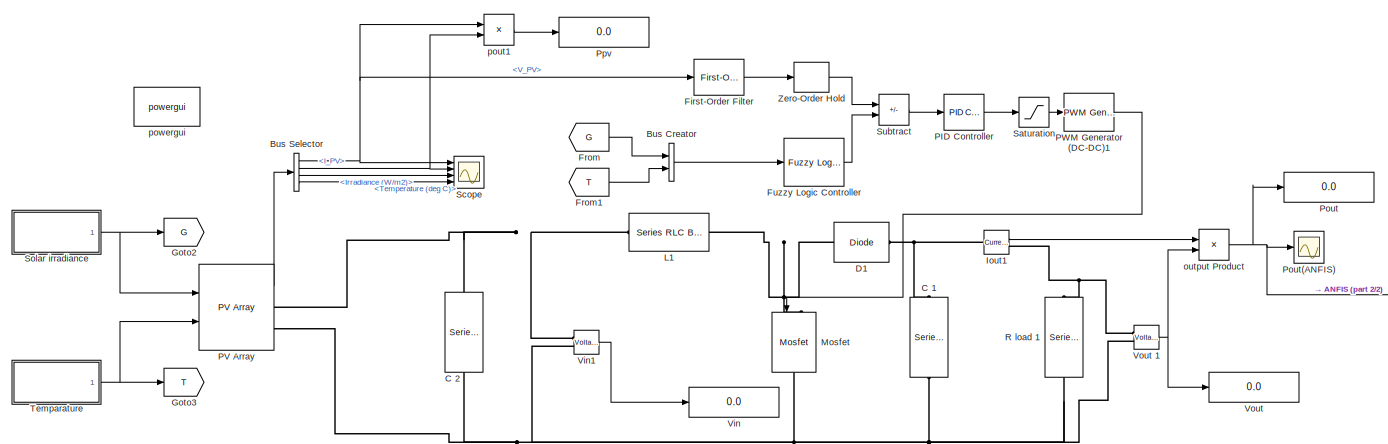
[diagram: Subsystem5 - part 1/2, most of the canvas]
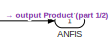
[diagram: Subsystem5 - part 2/2, middle right region]
BLOCK [SubSystem] Subsystem5
  Ports = [0, 1]
  RequestExecContextInheritance = off
BLOCK [Outport] Subsystem5/ANFIS
BLOCK [BusCreator] Subsystem5/Bus Creator
  DisplayOption = bar
  InheritFromInputs = on
  Inputs = 2
  Ports = [2, 1]
BLOCK [BusSelector] Subsystem5/Bus Selector
  OutputSignals = V_PV,I_PV,Irradiance (W/m2),Temperature (deg C)
  Ports = [1, 4]
BLOCK [Reference] Subsystem5/C 1  REF=spsSeriesRLCBranchLib/Series RLC Branch
  NameLocation = left
  Ports = [0, 0, 0, 0, 0, 1, 1]
  SourceBlock = spsSeriesRLCBranchLib/Series RLC Branch
  SourceProductBaseCode = PS
  SourceType = Series RLC Branch
BLOCK [Reference] Subsystem5/C 2  REF=spsSeriesRLCBranchLib/Series RLC Branch
  NameLocation = left
  Ports = [0, 0, 0, 0, 0, 1, 1]
  SourceBlock = spsSeriesRLCBranchLib/Series RLC Branch
  SourceProductBaseCode = PS
  SourceType = Series RLC Branch
BLOCK [Reference] Subsystem5/D1  REF=spsDiodeLib/Diode
  Ports = [0, 0, 0, 0, 0, 1, 1]
  SourceBlock = spsDiodeLib/Diode
  SourceProductBaseCode = PS
  SourceType = Diode
BLOCK [Reference] Subsystem5/First-Order Filter  REF=spsFirstOrderFilterLib/First-Order
Filter
  Ports = [1, 1]
  SourceBlock = spsFirstOrderFilterLib/First-Order\nFilter
  SourceProductBaseCode = PS
  SourceType = First-Order Filter
BLOCK [From] Subsystem5/From
  GotoTag = G
BLOCK [From] Subsystem5/From1
  GotoTag = T
BLOCK [Reference] Subsystem5/Fuzzy Logic Controller  REF=fuzblock/Fuzzy Logic   (lib defined in mdl_858b3b3e7478)
Controller
  Ports = [1, 1]
  SourceBlock = fuzblock/Fuzzy Logic \nController
  SourceProductBaseCode = FL
  SourceType = Fuzzy Inference System
BLOCK [Goto] Subsystem5/Goto2
  GotoTag = G
BLOCK [Goto] Subsystem5/Goto3
  GotoTag = T
BLOCK [Reference] Subsystem5/Iout1  REF=spsCurrentMeasurementLib/Current Measurement
  Ports = [0, 1, 0, 0, 0, 1, 1]
  SourceBlock = spsCurrentMeasurementLib/Current Measurement
  SourceProductBaseCode = PS
  SourceType = Current Measurement
  UserDataPersistent = on
BLOCK [Reference] Subsystem5/L1  REF=spsSeriesRLCBranchLib/Series RLC Branch
  Ports = [0, 0, 0, 0, 0, 1, 1]
  SourceBlock = spsSeriesRLCBranchLib/Series RLC Branch
  SourceProductBaseCode = PS
  SourceType = Series RLC Branch
BLOCK [Reference] Subsystem5/Mosfet  REF=spsMosfetLib/Mosfet
  NameLocation = left
  Ports = [1, 0, 0, 0, 0, 1, 1]
  SourceBlock = spsMosfetLib/Mosfet
  SourceProductBaseCode = PS
  SourceType = Mosfet
BLOCK [Reference] Subsystem5/PID Controller  REF=slpidlib/PID Controller
  Ports = [1, 1]
  SourceBlock = slpidlib/PID Controller
  SourceProductBaseCode = SL
  SourceType = PID 1dof
BLOCK [Reference] Subsystem5/PV Array  REF=spsPVArrayLib/PV Array
  Ports = [2, 1, 0, 0, 0, 0, 2]
  SourceBlock = spsPVArrayLib/PV Array
  SourceProductBaseCode = PS
  SourceType = PV array
BLOCK [Reference] Subsystem5/PWM Generator (DC-DC)1  REF=spsPWMGeneratorDCDCLib/PWM Generator
(DC-DC)
  Ports = [1, 1]
  SourceBlock = spsPWMGeneratorDCDCLib/PWM Generator\n(DC-DC)
  SourceProductBaseCode = PS
  SourceType = PWM Generator (DC-DC)
BLOCK [Display] Subsystem5/Pout 
  Decimation = 1
  Ports = [1]
BLOCK [Scope] Subsystem5/Pout(ANFIS)
  Floating = off
  NumInputPorts = 1
  Ports = [1]
  ScopeSpecificationString = Simulink.scopes.TimeScopeBlockCfg('CurrentConfiguration', extmgr.ConfigurationSet(extmgr.Configuration('Core','General UI',true,'FigureColor',[1 1 1]),extmgr.Configuration('Core','Source UI',true),extmgr.Configuration('Sources','WiredSimulink',true,'DataLoggingDecimation','1','DataLoggingDecimateData',true,'DataLoggingSaveFormat','StructureWithTime','DataLogging',true,'DataLoggingVariableName','Sc...<+1897ch>
BLOCK [Display] Subsystem5/Ppv
  Decimation = 1
  Ports = [1]
BLOCK [Reference] Subsystem5/R load 1  REF=spsSeriesRLCBranchLib/Series RLC Branch
  NameLocation = left
  Ports = [0, 0, 0, 0, 0, 1, 1]
  SourceBlock = spsSeriesRLCBranchLib/Series RLC Branch
  SourceProductBaseCode = PS
  SourceType = Series RLC Branch
BLOCK [Saturate] Subsystem5/Saturation
  LowerLimit = 0.1
  UpperLimit = 0.7
BLOCK [Scope] Subsystem5/Scope
  Floating = off
  NumInputPorts = 4
  Ports = [4]
  ScopeSpecificationString = Simulink.scopes.TimeScopeBlockCfg('CurrentConfiguration', extmgr.ConfigurationSet(extmgr.Configuration('Core','General UI',true),extmgr.Configuration('Core','Source UI',true),extmgr.Configuration('Sources','WiredSimulink',true,'DataLoggingLimitDataPoints',true,'DataLoggingVariableName','ScopeData13','DataLoggingDecimation','1','DataLoggingDecimateData',true,'DataLoggingSaveFormat','Array'),extmgr....<+1791ch>
BLOCK [SubSystem] Subsystem5/Solar irradiance
  ClipboardFcn = sigbuilder_block('clipboard');
  CloseFcn = sigbuilder_block('close');
  ContinueFcn = sigbuilder_block('continue');
  CopyFcn = sigbuilder_block('copy');
  DeleteFcn = sigbuilder_block('delete');
  LoadFcn = sigbuilder_block('load');
  MaskHideContents = on
  ModelCloseFcn = sigbuilder_block('modelClose');
  NameChangeFcn = sigbuilder_block('namechange');
  OpenFcn = sigbuilder_block('open',[437.25 117.75 550.5 394.5 ]);
  PauseFcn = sigbuilder_block('pause');
  Ports = [0, 1]
  PreSaveFcn = sigbuilder_block('preSave');
  RequestExecContextInheritance = off
  StartFcn = sigbuilder_block('start');
  StopFcn = sigbuilder_block('stop');
  Tag = STV Subsys
BLOCK [Demux] Subsystem5/Solar irradiance/Demux
  DisplayOption = none
  Outputs = 1
  Ports = [1, 1]
  Tag = STV Demux
BLOCK [FromWorkspace] Subsystem5/Solar irradiance/FromWs
  Tag = STV FromWs
  VariableName = tuvar
BLOCK [Outport] Subsystem5/Solar irradiance/Signal 2
  Tag = STV Outport
BLOCK [Sum] Subsystem5/Subtract
  IconShape = rectangular
  Inputs = -+
  Ports = [2, 1]
BLOCK [SubSystem] Subsystem5/Temparature
  ClipboardFcn = sigbuilder_block('clipboard');
  CloseFcn = sigbuilder_block('close');
  ContinueFcn = sigbuilder_block('continue');
  CopyFcn = sigbuilder_block('copy');
  DeleteFcn = sigbuilder_block('delete');
  LoadFcn = sigbuilder_block('load');
  MaskHideContents = on
  ModelCloseFcn = sigbuilder_block('modelClose');
  NameChangeFcn = sigbuilder_block('namechange');
  OpenFcn = sigbuilder_block('open',[437.25 117.75 550.5 394.5 ]);
  PauseFcn = sigbuilder_block('pause');
  Ports = [0, 1]
  PreSaveFcn = sigbuilder_block('preSave');
  RequestExecContextInheritance = off
  StartFcn = sigbuilder_block('start');
  StopFcn = sigbuilder_block('stop');
  Tag = STV Subsys
BLOCK [Demux] Subsystem5/Temparature/Demux
  DisplayOption = none
  Outputs = 1
  Ports = [1, 1]
  Tag = STV Demux
BLOCK [FromWorkspace] Subsystem5/Temparature/FromWs
  Tag = STV FromWs
  VariableName = tuvar
BLOCK [Outport] Subsystem5/Temparature/Signal 1
  Tag = STV Outport
BLOCK [Display] Subsystem5/Vin 
  Decimation = 1
  Ports = [1]
BLOCK [Reference] Subsystem5/Vin1  REF=spsVoltageMeasurementLib/Voltage Measurement
  Ports = [0, 1, 0, 0, 0, 2]
  SourceBlock = spsVoltageMeasurementLib/Voltage Measurement
  SourceProductBaseCode = PS
  SourceType = Voltage Measurement
  UserDataPersistent = on
BLOCK [Display] Subsystem5/Vout 
  Decimation = 1
  Ports = [1]
BLOCK [Reference] Subsystem5/Vout 1  REF=spsVoltageMeasurementLib/Voltage Measurement
  Ports = [0, 1, 0, 0, 0, 2]
  SourceBlock = spsVoltageMeasurementLib/Voltage Measurement
  SourceProductBaseCode = PS
  SourceType = Voltage Measurement
  UserDataPersistent = on
BLOCK [ZeroOrderHold] Subsystem5/Zero-Order Hold
BLOCK [Product] Subsystem5/output Product
  Ports = [2, 1]
BLOCK [Product] Subsystem5/pout1
  Ports = [2, 1]
BLOCK [Reference] Subsystem5/powergui  REF=spspowerguiLib/powergui
  Ports = []
  Priority = 1
  SourceBlock = spspowerguiLib/powergui
  SourceProductBaseCode = PS
  SourceType = PSB option menu block
BLOCK [SubSystem] Subsystem6
  Ports = [0, 1]
  RequestExecContextInheritance = off
BLOCK [BusSelector] Subsystem6/Bus Selector
  OutputSignals = V_PV,I_PV,Irradiance (W/m2),Temperature (deg C)
  Ports = [1, 4]
BLOCK [Reference] Subsystem6/C 1  REF=spsSeriesRLCBranchLib/Series RLC Branch
  NameLocation = left
  Ports = [0, 0, 0, 0, 0, 1, 1]
  SourceBlock = spsSeriesRLCBranchLib/Series RLC Branch
  SourceProductBaseCode = PS
  SourceType = Series RLC Branch
BLOCK [Reference] Subsystem6/C 2  REF=spsSeriesRLCBranchLib/Series RLC Branch
  NameLocation = left
  Ports = [0, 0, 0, 0, 0, 1, 1]
  SourceBlock = spsSeriesRLCBranchLib/Series RLC Branch
  SourceProductBaseCode = PS
  SourceType = Series RLC Branch
BLOCK [Reference] Subsystem6/D1  REF=spsDiodeLib/Diode
  Ports = [0, 0, 0, 0, 0, 1, 1]
  SourceBlock = spsDiodeLib/Diode
  SourceProductBaseCode = PS
  SourceType = Diode
BLOCK [Reference] Subsystem6/Iout1  REF=spsCurrentMeasurementLib/Current Measurement
  Ports = [0, 1, 0, 0, 0, 1, 1]
  SourceBlock = spsCurrentMeasurementLib/Current Measurement
  SourceProductBaseCode = PS
  SourceType = Current Measurement
  UserDataPersistent = on
BLOCK [Reference] Subsystem6/L1  REF=spsSeriesRLCBranchLib/Series RLC Branch
  Ports = [0, 0, 0, 0, 0, 1, 1]
  SourceBlock = spsSeriesRLCBranchLib/Series RLC Branch
  SourceProductBaseCode = PS
  SourceType = Series RLC Branch
BLOCK [SubSystem] Subsystem6/MATLAB Function
  ErrorFcn = Stateflow.Translate.translate
  PermitHierarchicalResolution = ExplicitOnly
  Ports = [2, 1]
  RequestExecContextInheritance = off
  SFBlockType = MATLAB Function
  TreatAsAtomicUnit = on
BLOCK [Demux] Subsystem6/MATLAB Function/ Demux 
  Outputs = 1
  Ports = [1, 1]
BLOCK [S-Function] Subsystem6/MATLAB Function/ SFunction 
  EnableBusSupport = on
  FunctionName = sf_sfun
  PortCounts = [2 2]
  Ports = [2, 2]
  SFcnIsStateOwnerBlock = off
  SFunctionDeploymentMode = off
  Tag = Stateflow S-Function 5
BLOCK [Terminator] Subsystem6/MATLAB Function/ Terminator 
BLOCK [Outport] Subsystem6/MATLAB Function/D
BLOCK [Inport] Subsystem6/MATLAB Function/Ipv
  Port = 2
BLOCK [Inport] Subsystem6/MATLAB Function/Vpv
BLOCK [Reference] Subsystem6/Mosfet  REF=spsMosfetLib/Mosfet
  NameLocation = left
  Ports = [1, 0, 0, 0, 0, 1, 1]
  SourceBlock = spsMosfetLib/Mosfet
  SourceProductBaseCode = PS
  SourceType = Mosfet
BLOCK [Outport] Subsystem6/PSO
BLOCK [Reference] Subsystem6/PV Array  REF=spsPVArrayLib/PV Array
  Ports = [2, 1, 0, 0, 0, 0, 2]
  SourceBlock = spsPVArrayLib/PV Array
  SourceProductBaseCode = PS
  SourceType = PV array
BLOCK [Reference] Subsystem6/PWM Generator (DC-DC)1  REF=spsPWMGeneratorDCDCLib/PWM Generator
(DC-DC)
  Ports = [1, 1]
  SourceBlock = spsPWMGeneratorDCDCLib/PWM Generator\n(DC-DC)
  SourceProductBaseCode = PS
  SourceType = PWM Generator (DC-DC)
BLOCK [Display] Subsystem6/Pout 
  Decimation = 1
  Ports = [1]
BLOCK [Scope] Subsystem6/Pout(PSO)
  Floating = off
  NumInputPorts = 1
  Ports = [1]
  ScopeSpecificationString = Simulink.scopes.TimeScopeBlockCfg('CurrentConfiguration', extmgr.ConfigurationSet(extmgr.Configuration('Core','General UI',true,'FigureColor',[1 1 1]),extmgr.Configuration('Core','Source UI',true),extmgr.Configuration('Sources','WiredSimulink',true,'DataLoggingDecimation','1','DataLoggingDecimateData',true,'DataLoggingSaveFormat','StructureWithTime','DataLogging',true,'DataLoggingVariableName','Sc...<+1897ch>
BLOCK [Display] Subsystem6/Ppv
  Decimation = 1
  Ports = [1]
BLOCK [Reference] Subsystem6/R load 1  REF=spsSeriesRLCBranchLib/Series RLC Branch
  NameLocation = left
  Ports = [0, 0, 0, 0, 0, 1, 1]
  SourceBlock = spsSeriesRLCBranchLib/Series RLC Branch
  SourceProductBaseCode = PS
  SourceType = Series RLC Branch
BLOCK [Scope] Subsystem6/Scope
  Floating = off
  NumInputPorts = 4
  Ports = [4]
  ScopeSpecificationString = Simulink.scopes.TimeScopeBlockCfg('CurrentConfiguration', extmgr.ConfigurationSet(extmgr.Configuration('Core','General UI',true),extmgr.Configuration('Core','Source UI',true),extmgr.Configuration('Sources','WiredSimulink',true,'DataLoggingLimitDataPoints',true,'DataLoggingVariableName','ScopeData13','DataLoggingDecimation','1','DataLoggingDecimateData',true,'DataLoggingSaveFormat','Array'),extmgr....<+1791ch>
BLOCK [SubSystem] Subsystem6/Solar irradiance
  ClipboardFcn = sigbuilder_block('clipboard');
  CloseFcn = sigbuilder_block('close');
  ContinueFcn = sigbuilder_block('continue');
  CopyFcn = sigbuilder_block('copy');
  DeleteFcn = sigbuilder_block('delete');
  LoadFcn = sigbuilder_block('load');
  MaskHideContents = on
  ModelCloseFcn = sigbuilder_block('modelClose');
  NameChangeFcn = sigbuilder_block('namechange');
  OpenFcn = sigbuilder_block('open',[437.25 117.75 550.5 394.5 ]);
  PauseFcn = sigbuilder_block('pause');
  Ports = [0, 1]
  PreSaveFcn = sigbuilder_block('preSave');
  RequestExecContextInheritance = off
  StartFcn = sigbuilder_block('start');
  StopFcn = sigbuilder_block('stop');
  Tag = STV Subsys
BLOCK [Demux] Subsystem6/Solar irradiance/Demux
  DisplayOption = none
  Outputs = 1
  Ports = [1, 1]
  Tag = STV Demux
BLOCK [FromWorkspace] Subsystem6/Solar irradiance/FromWs
  Tag = STV FromWs
  VariableName = tuvar
BLOCK [Outport] Subsystem6/Solar irradiance/Signal 2
  Tag = STV Outport
BLOCK [SubSystem] Subsystem6/Temperature
  ClipboardFcn = sigbuilder_block('clipboard');
  CloseFcn = sigbuilder_block('close');
  ContinueFcn = sigbuilder_block('continue');
  CopyFcn = sigbuilder_block('copy');
  DeleteFcn = sigbuilder_block('delete');
  LoadFcn = sigbuilder_block('load');
  MaskHideContents = on
  ModelCloseFcn = sigbuilder_block('modelClose');
  NameChangeFcn = sigbuilder_block('namechange');
  OpenFcn = sigbuilder_block('open',[437.25 117.75 550.5 394.5 ]);
  PauseFcn = sigbuilder_block('pause');
  Ports = [0, 1]
  PreSaveFcn = sigbuilder_block('preSave');
  RequestExecContextInheritance = off
  StartFcn = sigbuilder_block('start');
  StopFcn = sigbuilder_block('stop');
  Tag = STV Subsys
BLOCK [Demux] Subsystem6/Temperature/Demux
  DisplayOption = none
  Outputs = 1
  Ports = [1, 1]
  Tag = STV Demux
BLOCK [FromWorkspace] Subsystem6/Temperature/FromWs
  Tag = STV FromWs
  VariableName = tuvar
BLOCK [Outport] Subsystem6/Temperature/Signal 1
  Tag = STV Outport
BLOCK [Display] Subsystem6/Vin 
  Decimation = 1
  Ports = [1]
BLOCK [Reference] Subsystem6/Vin1  REF=spsVoltageMeasurementLib/Voltage Measurement
  Ports = [0, 1, 0, 0, 0, 2]
  SourceBlock = spsVoltageMeasurementLib/Voltage Measurement
  SourceProductBaseCode = PS
  SourceType = Voltage Measurement
  UserDataPersistent = on
BLOCK [Display] Subsystem6/Vout 
  Decimation = 1
  Ports = [1]
BLOCK [Reference] Subsystem6/Vout 1  REF=spsVoltageMeasurementLib/Voltage Measurement
  Ports = [0, 1, 0, 0, 0, 2]
  SourceBlock = spsVoltageMeasurementLib/Voltage Measurement
  SourceProductBaseCode = PS
  SourceType = Voltage Measurement
  UserDataPersistent = on
BLOCK [Product] Subsystem6/output Product
  Ports = [2, 1]
BLOCK [Product] Subsystem6/pout1
  Ports = [2, 1]
BLOCK [Reference] Subsystem6/powergui1  REF=spspowerguiLib/powergui
  Ports = []
  Priority = 1
  SourceBlock = spspowerguiLib/powergui
  SourceProductBaseCode = PS
  SourceType = PSB option menu block
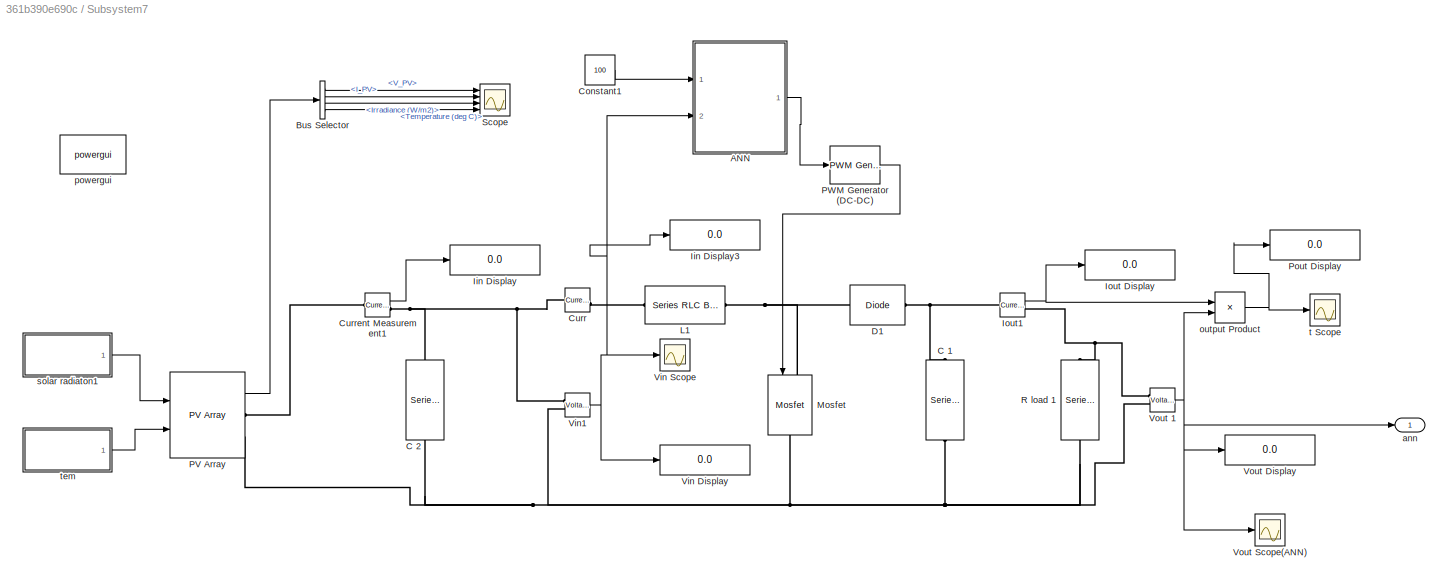
BLOCK [SubSystem] Subsystem7
  Ports = [0, 1]
  RequestExecContextInheritance = off
BLOCK [SubSystem] Subsystem7/ANN
  Ports = [2, 1]
  RequestExecContextInheritance = off
BLOCK [Saturate] Subsystem7/ANN/ 
  LowerLimit = 0.1
  UpperLimit = 0.7
BLOCK [Memory] Subsystem7/ANN/  
  InheritSampleTime = on
  InitialCondition = 0.01
  NameLocation = top
BLOCK [Saturate] Subsystem7/ANN/   
  LowerLimit = -1
  UpperLimit = 1
BLOCK [Saturate] Subsystem7/ANN/    
  LowerLimit = -1
  UpperLimit = 1
BLOCK [Outport] Subsystem7/ANN/D
BLOCK [SubSystem] Subsystem7/ANN/Function Fitting Neural Network
  Ports = [1, 1]
  RequestExecContextInheritance = off
BLOCK [From] Subsystem7/ANN/Function Fitting Neural Network/ a{1} 
  GotoTag = feedback1
BLOCK [Inport] Subsystem7/ANN/Function Fitting Neural Network/Input
  PortDimensions = 2
BLOCK [SubSystem] Subsystem7/ANN/Function Fitting Neural Network/Layer 1
  Ports = [1, 1]
  RequestExecContextInheritance = off
BLOCK [SubSystem] Subsystem7/ANN/Function Fitting Neural Network/Layer 1/Delays 1
  Ports = [1, 1]
  RequestExecContextInheritance = off
BLOCK [Mux] Subsystem7/ANN/Function Fitting Neural Network/Layer 1/Delays 1/mux
  Inputs = 1
  Ports = [1, 1]
BLOCK [Outport] Subsystem7/ANN/Function Fitting Neural Network/Layer 1/Delays 1/pd{1,1}
BLOCK [Inport] Subsystem7/ANN/Function Fitting Neural Network/Layer 1/Delays 1/p{1}
  NameLocation = left
  PortDimensions = 2
BLOCK [SubSystem] Subsystem7/ANN/Function Fitting Neural Network/Layer 1/IW{1,1}
  Ports = [1, 1]
  RequestExecContextInheritance = off
BLOCK [Constant] Subsystem7/ANN/Function Fitting Neural Network/Layer 1/IW{1,1}/IW{1,1}(1,:)'
  Value = [-3.1549215803620769;-3.2643744480250154]
BLOCK [Constant] Subsystem7/ANN/Function Fitting Neural Network/Layer 1/IW{1,1}/IW{1,1}(10,:)'
  Value = [4.3215386797726278;0.99216339136282483]
BLOCK [Constant] Subsystem7/ANN/Function Fitting Neural Network/Layer 1/IW{1,1}/IW{1,1}(2,:)'
  Value = [0.23159732733208307;4.3157665777225613]
BLOCK [Constant] Subsystem7/ANN/Function Fitting Neural Network/Layer 1/IW{1,1}/IW{1,1}(3,:)'
  Value = [3.5420645061139471;-3.668117065884676]
BLOCK [Constant] Subsystem7/ANN/Function Fitting Neural Network/Layer 1/IW{1,1}/IW{1,1}(4,:)'
  Value = [-2.4035631287998678;-3.9100394754890733]
BLOCK [Constant] Subsystem7/ANN/Function Fitting Neural Network/Layer 1/IW{1,1}/IW{1,1}(5,:)'
  Value = [4.0774515809679546;1.834066988323666]
BLOCK [Constant] Subsystem7/ANN/Function Fitting Neural Network/Layer 1/IW{1,1}/IW{1,1}(6,:)'
  Value = [-1.881341446481233;-3.9804518155051025]
BLOCK [Constant] Subsystem7/ANN/Function Fitting Neural Network/Layer 1/IW{1,1}/IW{1,1}(7,:)'
  Value = [1.1949505190782121;-4.2927822654522396]
BLOCK [Constant] Subsystem7/ANN/Function Fitting Neural Network/Layer 1/IW{1,1}/IW{1,1}(8,:)'
  Value = [3.7823096605965238;2.3006830791871233]
BLOCK [Constant] Subsystem7/ANN/Function Fitting Neural Network/Layer 1/IW{1,1}/IW{1,1}(9,:)'
  Value = [3.0604426851434487;-3.1993045631098105]
BLOCK [Mux] Subsystem7/ANN/Function Fitting Neural Network/Layer 1/IW{1,1}/Mux
  Inputs = 10
  Ports = [10, 1]
BLOCK [Reference] Subsystem7/ANN/Function Fitting Neural Network/Layer 1/IW{1,1}/dotprod1  REF=neural/Weight Functions/dotprod
  Ports = [2, 1]
  SourceBlock = neural/Weight Functions/dotprod
  SourceProductBaseCode = NN
  SourceType = DOTPROD
BLOCK [Reference] Subsystem7/ANN/Function Fitting Neural Network/Layer 1/IW{1,1}/dotprod10  REF=neural/Weight Functions/dotprod
  Ports = [2, 1]
  SourceBlock = neural/Weight Functions/dotprod
  SourceProductBaseCode = NN
  SourceType = DOTPROD
BLOCK [Reference] Subsystem7/ANN/Function Fitting Neural Network/Layer 1/IW{1,1}/dotprod2  REF=neural/Weight Functions/dotprod
  Ports = [2, 1]
  SourceBlock = neural/Weight Functions/dotprod
  SourceProductBaseCode = NN
  SourceType = DOTPROD
BLOCK [Reference] Subsystem7/ANN/Function Fitting Neural Network/Layer 1/IW{1,1}/dotprod3  REF=neural/Weight Functions/dotprod
  Ports = [2, 1]
  SourceBlock = neural/Weight Functions/dotprod
  SourceProductBaseCode = NN
  SourceType = DOTPROD
BLOCK [Reference] Subsystem7/ANN/Function Fitting Neural Network/Layer 1/IW{1,1}/dotprod4  REF=neural/Weight Functions/dotprod
  Ports = [2, 1]
  SourceBlock = neural/Weight Functions/dotprod
  SourceProductBaseCode = NN
  SourceType = DOTPROD
BLOCK [Reference] Subsystem7/ANN/Function Fitting Neural Network/Layer 1/IW{1,1}/dotprod5  REF=neural/Weight Functions/dotprod
  Ports = [2, 1]
  SourceBlock = neural/Weight Functions/dotprod
  SourceProductBaseCode = NN
  SourceType = DOTPROD
BLOCK [Reference] Subsystem7/ANN/Function Fitting Neural Network/Layer 1/IW{1,1}/dotprod6  REF=neural/Weight Functions/dotprod
  Ports = [2, 1]
  SourceBlock = neural/Weight Functions/dotprod
  SourceProductBaseCode = NN
  SourceType = DOTPROD
BLOCK [Reference] Subsystem7/ANN/Function Fitting Neural Network/Layer 1/IW{1,1}/dotprod7  REF=neural/Weight Functions/dotprod
  Ports = [2, 1]
  SourceBlock = neural/Weight Functions/dotprod
  SourceProductBaseCode = NN
  SourceType = DOTPROD
BLOCK [Reference] Subsystem7/ANN/Function Fitting Neural Network/Layer 1/IW{1,1}/dotprod8  REF=neural/Weight Functions/dotprod
  Ports = [2, 1]
  SourceBlock = neural/Weight Functions/dotprod
  SourceProductBaseCode = NN
  SourceType = DOTPROD
BLOCK [Reference] Subsystem7/ANN/Function Fitting Neural Network/Layer 1/IW{1,1}/dotprod9  REF=neural/Weight Functions/dotprod
  Ports = [2, 1]
  SourceBlock = neural/Weight Functions/dotprod
  SourceProductBaseCode = NN
  SourceType = DOTPROD
BLOCK [Outport] Subsystem7/ANN/Function Fitting Neural Network/Layer 1/IW{1,1}/iz{1,1}
BLOCK [Inport] Subsystem7/ANN/Function Fitting Neural Network/Layer 1/IW{1,1}/pd{1,1}
  PortDimensions = 2
BLOCK [Outport] Subsystem7/ANN/Function Fitting Neural Network/Layer 1/a{1}
  InitialOutput = [0;0;0;0;0;0;0;0;0;0]
BLOCK [Constant] Subsystem7/ANN/Function Fitting Neural Network/Layer 1/b{1}
  Value = [4.2498450600033646;-3.5459947004323884;-2.8437309415280434;1.9169166361344252;-0.42994895301969316;-0.41524374608432507;1.5012029363474229;2.4596143283853529;3.4420068184056949;4.4215289791863901]
BLOCK [Sum] Subsystem7/ANN/Function Fitting Neural Network/Layer 1/netsum
  IconShape = rectangular
  InputSameDT = on
  Inputs = 2
  OutDataTypeStr = Inherit: Same as first input
  Ports = [2, 1]
  SaturateOnIntegerOverflow = on
BLOCK [Inport] Subsystem7/ANN/Function Fitting Neural Network/Layer 1/p{1}
  PortDimensions = 2
BLOCK [Reference] Subsystem7/ANN/Function Fitting Neural Network/Layer 1/tansig  REF=neural/Transfer Functions/tansig
  Ports = [1, 1]
  SourceBlock = neural/Transfer Functions/tansig
  SourceProductBaseCode = NN
  SourceType = TANSIG
BLOCK [SubSystem] Subsystem7/ANN/Function Fitting Neural Network/Layer 2
  Ports = [1, 1]
  RequestExecContextInheritance = off
BLOCK [SubSystem] Subsystem7/ANN/Function Fitting Neural Network/Layer 2/Delays 1
  Ports = [1, 1]
  RequestExecContextInheritance = off
BLOCK [Mux] Subsystem7/ANN/Function Fitting Neural Network/Layer 2/Delays 1/mux
  Inputs = 1
  Ports = [1, 1]
BLOCK [Outport] Subsystem7/ANN/Function Fitting Neural Network/Layer 2/Delays 1/pd{2,1}
BLOCK [Inport] Subsystem7/ANN/Function Fitting Neural Network/Layer 2/Delays 1/p{2}
  NameLocation = left
  PortDimensions = 10
BLOCK [SubSystem] Subsystem7/ANN/Function Fitting Neural Network/Layer 2/LW{2,1}
  Ports = [1, 1]
  RequestExecContextInheritance = off
BLOCK [Constant] Subsystem7/ANN/Function Fitting Neural Network/Layer 2/LW{2,1}/IW{2,1}(1,:)'
  Value = [-0.47493517034765337;-0.41876239213672239;2.3962932035510089;-1.6611049994323526;-1.3129808401076486;-0.072751763885582382;-0.68753464914676288;-0.36606316852898096;0.45441754060086159;-0.26447547932800886]
BLOCK [Mux] Subsystem7/ANN/Function Fitting Neural Network/Layer 2/LW{2,1}/Mux
  Inputs = 1
  Ports = [1, 1]
BLOCK [Inport] Subsystem7/ANN/Function Fitting Neural Network/Layer 2/LW{2,1}/ad{2,1}
  PortDimensions = 10
BLOCK [Reference] Subsystem7/ANN/Function Fitting Neural Network/Layer 2/LW{2,1}/dotprod1  REF=neural/Weight Functions/dotprod
  Ports = [2, 1]
  SourceBlock = neural/Weight Functions/dotprod
  SourceProductBaseCode = NN
  SourceType = DOTPROD
BLOCK [Outport] Subsystem7/ANN/Function Fitting Neural Network/Layer 2/LW{2,1}/lz{2,1}
BLOCK [Inport] Subsystem7/ANN/Function Fitting Neural Network/Layer 2/a{1} 
  PortDimensions = 10
BLOCK [Outport] Subsystem7/ANN/Function Fitting Neural Network/Layer 2/a{2}
  InitialOutput = 0
BLOCK [Constant] Subsystem7/ANN/Function Fitting Neural Network/Layer 2/b{2}
  Value = 1.5159961723017756
BLOCK [Sum] Subsystem7/ANN/Function Fitting Neural Network/Layer 2/netsum
  IconShape = rectangular
  InputSameDT = on
  Inputs = 2
  OutDataTypeStr = Inherit: Same as first input
  Ports = [2, 1]
  SaturateOnIntegerOverflow = on
BLOCK [Reference] Subsystem7/ANN/Function Fitting Neural Network/Layer 2/purelin  REF=neural/Transfer Functions/purelin
  Ports = [1, 1]
  SourceBlock = neural/Transfer Functions/purelin
  SourceProductBaseCode = NN
  SourceType = PURELIN
BLOCK [Outport] Subsystem7/ANN/Function Fitting Neural Network/Output
  InitialOutput = 0
BLOCK [SubSystem] Subsystem7/ANN/Function Fitting Neural Network/Process Input 1
  Ports = [1, 1]
  RequestExecContextInheritance = off
BLOCK [Reference] Subsystem7/ANN/Function Fitting Neural Network/Process Input 1/mapminmax  REF=neural/Processing Functions/mapminmax
  Ports = [1, 1]
  SourceBlock = neural/Processing Functions/mapminmax
  SourceProductBaseCode = NN
  SourceType = MAPMINMAX Preprocess
BLOCK [Outport] Subsystem7/ANN/Function Fitting Neural Network/Process Input 1/p
  PortDimensions = 2
BLOCK [Inport] Subsystem7/ANN/Function Fitting Neural Network/Process Input 1/x
  PortDimensions = 2
BLOCK [SubSystem] Subsystem7/ANN/Function Fitting Neural Network/Process Output 1
  Ports = [1, 1]
  RequestExecContextInheritance = off
BLOCK [Inport] Subsystem7/ANN/Function Fitting Neural Network/Process Output 1/a
  PortDimensions = 1
BLOCK [Reference] Subsystem7/ANN/Function Fitting Neural Network/Process Output 1/mapminmax_reverse  REF=neural/Processing Functions/mapminmax_reverse
  Ports = [1, 1]
  SourceBlock = neural/Processing Functions/mapminmax_reverse
  SourceProductBaseCode = NN
  SourceType = MAPMINMAX Reverse Process
BLOCK [Outport] Subsystem7/ANN/Function Fitting Neural Network/Process Output 1/y
  PortDimensions = 1
BLOCK [Goto] Subsystem7/ANN/Function Fitting Neural Network/a{1}
  GotoTag = feedback1
BLOCK [Gain] Subsystem7/ANN/Gain
  Gain = 0.2
BLOCK [Gain] Subsystem7/ANN/Gain1
  Gain = 0.05
BLOCK [Gain] Subsystem7/ANN/Gain2
  Gain = 0.1
BLOCK [Inport] Subsystem7/ANN/IL
  Port = 2
BLOCK [Inport] Subsystem7/ANN/ILref
BLOCK [Memory] Subsystem7/ANN/Memory2
  InheritSampleTime = on
BLOCK [Mux] Subsystem7/ANN/Mux
  DisplayOption = bar
  Inputs = 2
  Ports = [2, 1]
BLOCK [Sum] Subsystem7/ANN/Sum
  Inputs = |++
  Ports = [2, 1]
BLOCK [Sum] Subsystem7/ANN/Sum1
  IconShape = rectangular
  Inputs = |+-
  Ports = [2, 1]
BLOCK [Sum] Subsystem7/ANN/Sum2
  Inputs = |+-
  Ports = [2, 1]
BLOCK [BusSelector] Subsystem7/Bus Selector
  OutputSignals = V_PV,I_PV,Irradiance (W/m2),Temperature (deg C)
  Ports = [1, 4]
BLOCK [Reference] Subsystem7/C 1  REF=spsSeriesRLCBranchLib/Series RLC Branch
  NameLocation = left
  Ports = [0, 0, 0, 0, 0, 1, 1]
  SourceBlock = spsSeriesRLCBranchLib/Series RLC Branch
  SourceProductBaseCode = PS
  SourceType = Series RLC Branch
BLOCK [Reference] Subsystem7/C 2  REF=spsSeriesRLCBranchLib/Series RLC Branch
  NameLocation = left
  Ports = [0, 0, 0, 0, 0, 1, 1]
  SourceBlock = spsSeriesRLCBranchLib/Series RLC Branch
  SourceProductBaseCode = PS
  SourceType = Series RLC Branch
BLOCK [Constant] Subsystem7/Constant1
  Value = 100
BLOCK [Reference] Subsystem7/Curr  REF=spsCurrentMeasurementLib/Current Measurement
  Ports = [0, 1, 0, 0, 0, 1, 1]
  SourceBlock = spsCurrentMeasurementLib/Current Measurement
  SourceProductBaseCode = PS
  SourceType = Current Measurement
  UserDataPersistent = on
BLOCK [Reference] Subsystem7/Current Measurement1  REF=spsCurrentMeasurementLib/Current Measurement
  Ports = [0, 1, 0, 0, 0, 1, 1]
  SourceBlock = spsCurrentMeasurementLib/Current Measurement
  SourceProductBaseCode = PS
  SourceType = Current Measurement
  UserDataPersistent = on
BLOCK [Reference] Subsystem7/D1  REF=spsDiodeLib/Diode
  Ports = [0, 0, 0, 0, 0, 1, 1]
  SourceBlock = spsDiodeLib/Diode
  SourceProductBaseCode = PS
  SourceType = Diode
BLOCK [Display] Subsystem7/Iin Display
  Decimation = 1
  Ports = [1]
BLOCK [Display] Subsystem7/Iin Display3
  Decimation = 1
  Ports = [1]
BLOCK [Display] Subsystem7/Iout Display
  Decimation = 1
  Ports = [1]
BLOCK [Reference] Subsystem7/Iout1  REF=spsCurrentMeasurementLib/Current Measurement
  Ports = [0, 1, 0, 0, 0, 1, 1]
  SourceBlock = spsCurrentMeasurementLib/Current Measurement
  SourceProductBaseCode = PS
  SourceType = Current Measurement
  UserDataPersistent = on
BLOCK [Reference] Subsystem7/L1  REF=spsSeriesRLCBranchLib/Series RLC Branch
  Ports = [0, 0, 0, 0, 0, 1, 1]
  SourceBlock = spsSeriesRLCBranchLib/Series RLC Branch
  SourceProductBaseCode = PS
  SourceType = Series RLC Branch
BLOCK [Reference] Subsystem7/Mosfet  REF=spsMosfetLib/Mosfet
  NameLocation = left
  Ports = [1, 0, 0, 0, 0, 1, 1]
  SourceBlock = spsMosfetLib/Mosfet
  SourceProductBaseCode = PS
  SourceType = Mosfet
BLOCK [Reference] Subsystem7/PV Array  REF=spsPVArrayLib/PV Array
  Ports = [2, 1, 0, 0, 0, 0, 2]
  SourceBlock = spsPVArrayLib/PV Array
  SourceProductBaseCode = PS
  SourceType = PV array
BLOCK [Reference] Subsystem7/PWM Generator (DC-DC)  REF=spsPWMGeneratorDCDCLib/PWM Generator
(DC-DC)
  Ports = [1, 1]
  SourceBlock = spsPWMGeneratorDCDCLib/PWM Generator\n(DC-DC)
  SourceProductBaseCode = PS
  SourceType = PWM Generator (DC-DC)
BLOCK [Display] Subsystem7/Pout Display
  Decimation = 1
  Ports = [1]
BLOCK [Reference] Subsystem7/R load 1  REF=spsSeriesRLCBranchLib/Series RLC Branch
  NameLocation = left
  Ports = [0, 0, 0, 0, 0, 1, 1]
  SourceBlock = spsSeriesRLCBranchLib/Series RLC Branch
  SourceProductBaseCode = PS
  SourceType = Series RLC Branch
BLOCK [Scope] Subsystem7/Scope
  Floating = off
  NumInputPorts = 4
  Ports = [4]
  ScopeSpecificationString = Simulink.scopes.TimeScopeBlockCfg('CurrentConfiguration', extmgr.ConfigurationSet(extmgr.Configuration('Core','General UI',true),extmgr.Configuration('Core','Source UI',true),extmgr.Configuration('Sources','WiredSimulink',true,'DataLoggingLimitDataPoints',true,'DataLoggingVariableName','ScopeData1','DataLoggingDecimation','1','DataLoggingDecimateData',true,'DataLoggingSaveFormat','Array'),extmgr.C...<+1790ch>
BLOCK [Display] Subsystem7/Vin Display
  Decimation = 1
  Ports = [1]
BLOCK [Scope] Subsystem7/Vin Scope
  Floating = off
  NumInputPorts = 1
  Ports = [1]
  ScopeSpecificationString = Simulink.scopes.TimeScopeBlockCfg('CurrentConfiguration', extmgr.ConfigurationSet(extmgr.Configuration('Core','General UI',true),extmgr.Configuration('Core','Source UI',true),extmgr.Configuration('Sources','WiredSimulink',true,'DataLoggingVariableName','ScopeData2','DataLoggingLimitDataPoints',true,'DataLoggingSaveFormat','Array','DataLoggingDecimation','1','DataLoggingDecimateData',true),extmgr.C...<+1687ch>
BLOCK [Reference] Subsystem7/Vin1  REF=spsVoltageMeasurementLib/Voltage Measurement
  Ports = [0, 1, 0, 0, 0, 2]
  SourceBlock = spsVoltageMeasurementLib/Voltage Measurement
  SourceProductBaseCode = PS
  SourceType = Voltage Measurement
  UserDataPersistent = on
BLOCK [Reference] Subsystem7/Vout 1  REF=spsVoltageMeasurementLib/Voltage Measurement
  Ports = [0, 1, 0, 0, 0, 2]
  SourceBlock = spsVoltageMeasurementLib/Voltage Measurement
  SourceProductBaseCode = PS
  SourceType = Voltage Measurement
  UserDataPersistent = on
BLOCK [Display] Subsystem7/Vout Display
  Decimation = 1
  Ports = [1]
BLOCK [Scope] Subsystem7/Vout Scope(ANN)
  Floating = off
  NameLocation = top
  NumInputPorts = 1
  Ports = [1]
  ScopeSpecificationString = Simulink.scopes.TimeScopeBlockCfg('CurrentConfiguration', extmgr.ConfigurationSet(extmgr.Configuration('Core','General UI',true,'ShowStatusbar',false),extmgr.Configuration('Core','Source UI',true),extmgr.Configuration('Sources','WiredSimulink',true,'DataLoggingVariableName','ScopeData3','DataLoggingSaveFormat','StructureWithTime','DataLoggingDecimation','1','DataLoggingDecimateData',true,'DataLogg...<+2177ch>
BLOCK [Outport] Subsystem7/ann
BLOCK [Product] Subsystem7/output Product
  Ports = [2, 1]
BLOCK [Reference] Subsystem7/powergui  REF=spspowerguiLib/powergui
  Ports = []
  Priority = 1
  SourceBlock = spspowerguiLib/powergui
  SourceProductBaseCode = PS
  SourceType = PSB option menu block
BLOCK [SubSystem] Subsystem7/solar radiaton1
  ClipboardFcn = sigbuilder_block('clipboard');
  CloseFcn = sigbuilder_block('close');
  ContinueFcn = sigbuilder_block('continue');
  CopyFcn = sigbuilder_block('copy');
  DeleteFcn = sigbuilder_block('delete');
  LoadFcn = sigbuilder_block('load');
  MaskHideContents = on
  ModelCloseFcn = sigbuilder_block('modelClose');
  NameChangeFcn = sigbuilder_block('namechange');
  OpenFcn = sigbuilder_block('open',[437.25 117.75 550.5 394.5 ]);
  PauseFcn = sigbuilder_block('pause');
  Ports = [0, 1]
  PreSaveFcn = sigbuilder_block('preSave');
  RequestExecContextInheritance = off
  StartFcn = sigbuilder_block('start');
  StopFcn = sigbuilder_block('stop');
  Tag = STV Subsys
BLOCK [Demux] Subsystem7/solar radiaton1/Demux
  DisplayOption = none
  Outputs = 1
  Ports = [1, 1]
  Tag = STV Demux
BLOCK [FromWorkspace] Subsystem7/solar radiaton1/FromWs
  Tag = STV FromWs
  VariableName = tuvar
BLOCK [Outport] Subsystem7/solar radiaton1/Signal 2
  Tag = STV Outport
BLOCK [Scope] Subsystem7/t Scope
  Floating = off
  NumInputPorts = 1
  Ports = [1]
  ScopeSpecificationString = Simulink.scopes.TimeScopeBlockCfg('CurrentConfiguration', extmgr.ConfigurationSet(extmgr.Configuration('Core','General UI',true),extmgr.Configuration('Core','Source UI',true),extmgr.Configuration('Sources','WiredSimulink',true,'DataLoggingDecimation','1','DataLoggingDecimateData',true,'DataLoggingSaveFormat','StructureWithTime','DataLogging',true,'DataLoggingVariableName','ScopeData4'),extmgr.Conf...<+1765ch>
BLOCK [SubSystem] Subsystem7/tem
  ClipboardFcn = sigbuilder_block('clipboard');
  CloseFcn = sigbuilder_block('close');
  ContinueFcn = sigbuilder_block('continue');
  CopyFcn = sigbuilder_block('copy');
  DeleteFcn = sigbuilder_block('delete');
  LoadFcn = sigbuilder_block('load');
  MaskHideContents = on
  ModelCloseFcn = sigbuilder_block('modelClose');
  NameChangeFcn = sigbuilder_block('namechange');
  OpenFcn = sigbuilder_block('open',[437.25 117.75 550.5 394.5 ]);
  PauseFcn = sigbuilder_block('pause');
  Ports = [0, 1]
  PreSaveFcn = sigbuilder_block('preSave');
  RequestExecContextInheritance = off
  StartFcn = sigbuilder_block('start');
  StopFcn = sigbuilder_block('stop');
  Tag = STV Subsys
BLOCK [Demux] Subsystem7/tem/Demux
  DisplayOption = none
  Outputs = 1
  Ports = [1, 1]
  Tag = STV Demux
BLOCK [FromWorkspace] Subsystem7/tem/FromWs
  Tag = STV FromWs
  VariableName = tuvar
BLOCK [Outport] Subsystem7/tem/Signal 1
  Tag = STV Outport
BLOCK [Outport] ann1
  Port = 8
ANNOTATION Subsystem: Perturb & Observe
NET Subsystem/Bus Selector:1 -> Subsystem/P_O:1, Subsystem/Scope:1, Subsystem/pout1:1
NET Subsystem/Bus Selector:2 -> Subsystem/P_O:2, Subsystem/Scope:2, Subsystem/pout1:2
LINE Subsystem/Bus Selector:3 -> Subsystem/Scope:3
LINE Subsystem/Bus Selector:4 -> Subsystem/Scope:4
LINE Subsystem/Iout1:1 -> Subsystem/output Product:1
LINE Subsystem/PV Array:1 -> Subsystem/Bus Selector:1
LINE Subsystem/PWM Generator (DC-DC)1:1 -> Subsystem/Mosfet:1
LINE Subsystem/P_O/Constant:1 -> Subsystem/P_O/MATLAB Function1:3
LINE Subsystem/P_O/I:1 -> Subsystem/P_O/MATLAB Function1:2
NET Subsystem/P_O/MATLAB Function1:1 -> Subsystem/P_O/Saturation:1, Subsystem/P_O/Scope:1
NET Subsystem/P_O/Memory2:1 -> Subsystem/P_O/D:1, Subsystem/P_O/Display:1
LINE Subsystem/P_O/Saturation:1 -> Subsystem/P_O/Memory2:1
LINE Subsystem/P_O/V:1 -> Subsystem/P_O/MATLAB Function1:1
LINE Subsystem/P_O:1 -> Subsystem/PWM Generator (DC-DC)1:1
LINE Subsystem/Solar irradiance:1 -> Subsystem/PV Array:1
LINE Subsystem/Temperature:1 -> Subsystem/PV Array:2
LINE Subsystem/Vin1:1 -> Subsystem/Vin:1
NET Subsystem/Vout 1:1 -> Subsystem/Vout:1, Subsystem/output Product:2
NET Subsystem/output Product:1 -> Subsystem/Out1:1, Subsystem/Pout :1, Subsystem/Pout(p&O):1
LINE Subsystem/pout1:1 -> Subsystem/Ppv:1
NET Subsystem1/Bus Selector:1 -> Subsystem1/Scope:1, Subsystem1/pout1:1
NET Subsystem1/Bus Selector:2 -> Subsystem1/Scope:2, Subsystem1/pout1:2
LINE Subsystem1/Bus Selector:3 -> Subsystem1/Scope:3
LINE Subsystem1/Bus Selector:4 -> Subsystem1/Scope:4
LINE Subsystem1/Constant1:1 -> Subsystem1/Sum:1
LINE Subsystem1/Gain:1 -> Subsystem1/PID Controller:1
LINE Subsystem1/Iout1:1 -> Subsystem1/pout:1
LINE Subsystem1/PID Controller:1 -> Subsystem1/Relational Operator:2
LINE Subsystem1/PV Array:1 -> Subsystem1/Bus Selector:1
LINE Subsystem1/Relational Operator:1 -> Subsystem1/Mosfet:1
LINE Subsystem1/Repeating Sequence:1 -> Subsystem1/Relational Operator:1
LINE Subsystem1/Solar Irradiance:1 -> Subsystem1/PV Array:1
LINE Subsystem1/Sum:1 -> Subsystem1/Gain:1
LINE Subsystem1/Temperature:1 -> Subsystem1/PV Array:2
LINE Subsystem1/Vin:1 -> Subsystem1/Vn:1
NET Subsystem1/Vout :1 -> Subsystem1/Sum:2, Subsystem1/Vo:1, Subsystem1/pout:2
LINE Subsystem1/pout1:1 -> Subsystem1/poutput1:1
NET Subsystem1/pout:1 -> Subsystem1/PO1:1, Subsystem1/poutput:1, Subsystem1/power:1
LINE Subsystem1:1 -> PI:1
NET Subsystem2/Bus Selector:1 -> Subsystem2/INC:1, Subsystem2/Scope:1, Subsystem2/pout1:1
NET Subsystem2/Bus Selector:2 -> Subsystem2/INC:2, Subsystem2/Scope:2, Subsystem2/pout1:2
LINE Subsystem2/Bus Selector:3 -> Subsystem2/Scope:3
LINE Subsystem2/Bus Selector:4 -> Subsystem2/Scope:4
NET Subsystem2/INC/I:1 -> Subsystem2/INC/MATLAB Function:3, Subsystem2/INC/Memory1:1
NET Subsystem2/INC/MATLAB Function:1 -> Subsystem2/INC/Display1:1, Subsystem2/INC/Saturation:1, Subsystem2/INC/Scope:1
LINE Subsystem2/INC/Memory1:1 -> Subsystem2/INC/MATLAB Function:4
NET Subsystem2/INC/Memory2:1 -> Subsystem2/INC/D:1, Subsystem2/INC/Display:1, Subsystem2/INC/MATLAB Function:5
LINE Subsystem2/INC/Memory:1 -> Subsystem2/INC/MATLAB Function:2
LINE Subsystem2/INC/Saturation:1 -> Subsystem2/INC/Memory2:1
NET Subsystem2/INC/V:1 -> Subsystem2/INC/MATLAB Function:1, Subsystem2/INC/Memory:1
LINE Subsystem2/INC:1 -> Subsystem2/PWM Generator (DC-DC)1:1
LINE Subsystem2/Iout1:1 -> Subsystem2/output Product:1
LINE Subsystem2/PV Array:1 -> Subsystem2/Bus Selector:1
LINE Subsystem2/PWM Generator (DC-DC)1:1 -> Subsystem2/Mosfet:1
LINE Subsystem2/Solar irradiance:1 -> Subsystem2/PV Array:1
LINE Subsystem2/Temperature:1 -> Subsystem2/PV Array:2
LINE Subsystem2/Vin1:1 -> Subsystem2/Vin :1
NET Subsystem2/Vout 1:1 -> Subsystem2/Vout :1, Subsystem2/output Product:2
NET Subsystem2/output Product:1 -> Subsystem2/PI1:1, Subsystem2/Pout :1, Subsystem2/Pout(Incremental):1
LINE Subsystem2/pout1:1 -> Subsystem2/Ppv:1
LINE Subsystem2:1 -> INC:1
NET Subsystem3/Bus Selector:1 -> Subsystem3/FLC(P&o):2, Subsystem3/Scope:1, Subsystem3/pout1:1
NET Subsystem3/Bus Selector:2 -> Subsystem3/FLC(P&o):1, Subsystem3/Scope:2, Subsystem3/pout1:2
LINE Subsystem3/Bus Selector:3 -> Subsystem3/Scope:3
LINE Subsystem3/Bus Selector:4 -> Subsystem3/Scope:4
LINE Subsystem3/FLC(P&o)/  3:1 -> Subsystem3/FLC(P&o)/Sum4:1
LINE Subsystem3/FLC(P&o)/  :1 -> Subsystem3/FLC(P&o)/Sum:2
LINE Subsystem3/FLC(P&o)/ 1:1 -> Subsystem3/FLC(P&o)/Mux:2
LINE Subsystem3/FLC(P&o)/ 2:1 -> Subsystem3/FLC(P&o)/Mux:1
NET Subsystem3/FLC(P&o)/ :1 -> Subsystem3/FLC(P&o)/  :1, Subsystem3/FLC(P&o)/D:1
NET Subsystem3/FLC(P&o)/Fuzzy Logic Controller:1 -> Subsystem3/FLC(P&o)/Gain1:1, Subsystem3/FLC(P&o)/duty cycle:1
LINE Subsystem3/FLC(P&o)/Gain1:1 -> Subsystem3/FLC(P&o)/Sum:1
LINE Subsystem3/FLC(P&o)/I2:1 -> Subsystem3/FLC(P&o)/P_O:2
LINE Subsystem3/FLC(P&o)/Mux:1 -> Subsystem3/FLC(P&o)/Fuzzy Logic Controller:1
LINE Subsystem3/FLC(P&o)/P_O/Constant:1 -> Subsystem3/FLC(P&o)/P_O/MATLAB Function1:3
LINE Subsystem3/FLC(P&o)/P_O/I:1 -> Subsystem3/FLC(P&o)/P_O/MATLAB Function1:2
NET Subsystem3/FLC(P&o)/P_O/MATLAB Function1:1 -> Subsystem3/FLC(P&o)/P_O/Saturation:1, Subsystem3/FLC(P&o)/P_O/Scope:1
NET Subsystem3/FLC(P&o)/P_O/Memory2:1 -> Subsystem3/FLC(P&o)/P_O/D:1, Subsystem3/FLC(P&o)/P_O/Display:1
LINE Subsystem3/FLC(P&o)/P_O/Saturation:1 -> Subsystem3/FLC(P&o)/P_O/Memory2:1
LINE Subsystem3/FLC(P&o)/P_O/V:1 -> Subsystem3/FLC(P&o)/P_O/MATLAB Function1:1
NET Subsystem3/FLC(P&o)/P_O:1 -> Subsystem3/FLC(P&o)/  3:1, Subsystem3/FLC(P&o)/ 1:1, Subsystem3/FLC(P&o)/Sum4:2
LINE Subsystem3/FLC(P&o)/Sum4:1 -> Subsystem3/FLC(P&o)/ 2:1
LINE Subsystem3/FLC(P&o)/Sum:1 -> Subsystem3/FLC(P&o)/ :1
LINE Subsystem3/FLC(P&o)/v2:1 -> Subsystem3/FLC(P&o)/P_O:1
LINE Subsystem3/FLC(P&o):1 -> Subsystem3/PWM Generator (DC-DC):1
LINE Subsystem3/Iout1:1 -> Subsystem3/output Product:1
LINE Subsystem3/PV Array:1 -> Subsystem3/Bus Selector:1
LINE Subsystem3/PWM Generator (DC-DC):1 -> Subsystem3/Mosfet:1
LINE Subsystem3/Solae irradiance:1 -> Subsystem3/PV Array:1
LINE Subsystem3/Tempareture:1 -> Subsystem3/PV Array:2
NET Subsystem3/Vin1:1 -> Subsystem3/Vin :1, Subsystem3/Vin Scope:1
NET Subsystem3/Vout 1:1 -> Subsystem3/Vout Display:1, Subsystem3/output Product:2
NET Subsystem3/output Product:1 -> Subsystem3/ Pout(FLC_P&O):1, Subsystem3/INC1:1, Subsystem3/Pout :1
LINE Subsystem3/pout1:1 -> Subsystem3/Ppv:1
LINE Subsystem3:1 -> FLC_po:1
NET Subsystem4/Bus Selector:1 -> Subsystem4/FLC_INC:2, Subsystem4/Scope:1, Subsystem4/pout1:1
NET Subsystem4/Bus Selector:2 -> Subsystem4/FLC_INC:1, Subsystem4/Scope:2, Subsystem4/pout1:2
LINE Subsystem4/Bus Selector:3 -> Subsystem4/Scope:3
LINE Subsystem4/Bus Selector:4 -> Subsystem4/Scope:4
LINE Subsystem4/FLC_INC/  3:1 -> Subsystem4/FLC_INC/Sum4:1
LINE Subsystem4/FLC_INC/  :1 -> Subsystem4/FLC_INC/Sum:2
LINE Subsystem4/FLC_INC/ 1:1 -> Subsystem4/FLC_INC/Mux:2
LINE Subsystem4/FLC_INC/ 2:1 -> Subsystem4/FLC_INC/Mux:1
NET Subsystem4/FLC_INC/ :1 -> Subsystem4/FLC_INC/  :1, Subsystem4/FLC_INC/D:1
NET Subsystem4/FLC_INC/Fuzzy Logic Controller:1 -> Subsystem4/FLC_INC/Gain1:1, Subsystem4/FLC_INC/duty cycle:1
LINE Subsystem4/FLC_INC/Gain1:1 -> Subsystem4/FLC_INC/Sum:1
LINE Subsystem4/FLC_INC/I2:1 -> Subsystem4/FLC_INC/INC:2
NET Subsystem4/FLC_INC/INC/I:1 -> Subsystem4/FLC_INC/INC/MATLAB Function:3, Subsystem4/FLC_INC/INC/Memory1:1
NET Subsystem4/FLC_INC/INC/MATLAB Function:1 -> Subsystem4/FLC_INC/INC/Display1:1, Subsystem4/FLC_INC/INC/Saturation:1, Subsystem4/FLC_INC/INC/Scope:1
LINE Subsystem4/FLC_INC/INC/Memory1:1 -> Subsystem4/FLC_INC/INC/MATLAB Function:4
NET Subsystem4/FLC_INC/INC/Memory2:1 -> Subsystem4/FLC_INC/INC/D:1, Subsystem4/FLC_INC/INC/Display:1, Subsystem4/FLC_INC/INC/MATLAB Function:5
LINE Subsystem4/FLC_INC/INC/Memory:1 -> Subsystem4/FLC_INC/INC/MATLAB Function:2
LINE Subsystem4/FLC_INC/INC/Saturation:1 -> Subsystem4/FLC_INC/INC/Memory2:1
NET Subsystem4/FLC_INC/INC/V:1 -> Subsystem4/FLC_INC/INC/MATLAB Function:1, Subsystem4/FLC_INC/INC/Memory:1
NET Subsystem4/FLC_INC/INC:1 -> Subsystem4/FLC_INC/  3:1, Subsystem4/FLC_INC/ 1:1, Subsystem4/FLC_INC/Sum4:2
LINE Subsystem4/FLC_INC/Mux:1 -> Subsystem4/FLC_INC/Fuzzy Logic Controller:1
LINE Subsystem4/FLC_INC/Sum4:1 -> Subsystem4/FLC_INC/ 2:1
LINE Subsystem4/FLC_INC/Sum:1 -> Subsystem4/FLC_INC/ :1
LINE Subsystem4/FLC_INC/v2:1 -> Subsystem4/FLC_INC/INC:1
LINE Subsystem4/FLC_INC:1 -> Subsystem4/PWM Generator (DC-DC):1
LINE Subsystem4/Iout1:1 -> Subsystem4/output Product:1
LINE Subsystem4/PV Array:1 -> Subsystem4/Bus Selector:1
LINE Subsystem4/PWM Generator (DC-DC):1 -> Subsystem4/Mosfet:1
LINE Subsystem4/Solar irradiance:1 -> Subsystem4/PV Array:1
LINE Subsystem4/Temperature:1 -> Subsystem4/PV Array:2
LINE Subsystem4/Vin1:1 -> Subsystem4/Vin :1
NET Subsystem4/Vout 1:1 -> Subsystem4/Vout :1, Subsystem4/output Product:2
NET Subsystem4/output Product:1 -> Subsystem4/Out1:1, Subsystem4/Pout :1, Subsystem4/Pout(FLC_Inc):1
LINE Subsystem4/pout1:1 -> Subsystem4/Ppv:1
LINE Subsystem4:1 -> FLC_inc:1
LINE Subsystem5/Bus Creator:1 -> Subsystem5/Fuzzy Logic Controller:1
NET Subsystem5/Bus Selector:1 -> Subsystem5/First-Order Filter:1, Subsystem5/Scope:1, Subsystem5/pout1:1
NET Subsystem5/Bus Selector:2 -> Subsystem5/Scope:2, Subsystem5/pout1:2
LINE Subsystem5/Bus Selector:3 -> Subsystem5/Scope:3
LINE Subsystem5/Bus Selector:4 -> Subsystem5/Scope:4
LINE Subsystem5/First-Order Filter:1 -> Subsystem5/Zero-Order Hold:1
LINE Subsystem5/From1:1 -> Subsystem5/Bus Creator:2
LINE Subsystem5/From:1 -> Subsystem5/Bus Creator:1
LINE Subsystem5/Fuzzy Logic Controller:1 -> Subsystem5/Subtract:2
LINE Subsystem5/Iout1:1 -> Subsystem5/output Product:1
LINE Subsystem5/PID Controller:1 -> Subsystem5/Saturation:1
LINE Subsystem5/PV Array:1 -> Subsystem5/Bus Selector:1
LINE Subsystem5/PWM Generator (DC-DC)1:1 -> Subsystem5/Mosfet:1
LINE Subsystem5/Saturation:1 -> Subsystem5/PWM Generator (DC-DC)1:1
NET Subsystem5/Solar irradiance:1 -> Subsystem5/Goto2:1, Subsystem5/PV Array:1
LINE Subsystem5/Subtract:1 -> Subsystem5/PID Controller:1
NET Subsystem5/Temparature:1 -> Subsystem5/Goto3:1, Subsystem5/PV Array:2
LINE Subsystem5/Vin1:1 -> Subsystem5/Vin :1
NET Subsystem5/Vout 1:1 -> Subsystem5/Vout :1, Subsystem5/output Product:2
LINE Subsystem5/Zero-Order Hold:1 -> Subsystem5/Subtract:1
NET Subsystem5/output Product:1 -> Subsystem5/ANFIS:1, Subsystem5/Pout :1, Subsystem5/Pout(ANFIS):1
LINE Subsystem5/pout1:1 -> Subsystem5/Ppv:1
LINE Subsystem5:1 -> ANFIS:1
NET Subsystem6/Bus Selector:1 -> Subsystem6/MATLAB Function:1, Subsystem6/Scope:1, Subsystem6/pout1:1
NET Subsystem6/Bus Selector:2 -> Subsystem6/MATLAB Function:2, Subsystem6/Scope:2, Subsystem6/pout1:2
LINE Subsystem6/Bus Selector:3 -> Subsystem6/Scope:3
LINE Subsystem6/Bus Selector:4 -> Subsystem6/Scope:4
LINE Subsystem6/Iout1:1 -> Subsystem6/output Product:1
LINE Subsystem6/MATLAB Function:1 -> Subsystem6/PWM Generator (DC-DC)1:1
LINE Subsystem6/PV Array:1 -> Subsystem6/Bus Selector:1
LINE Subsystem6/PWM Generator (DC-DC)1:1 -> Subsystem6/Mosfet:1
LINE Subsystem6/Solar irradiance:1 -> Subsystem6/PV Array:1
LINE Subsystem6/Temperature:1 -> Subsystem6/PV Array:2
LINE Subsystem6/Vin1:1 -> Subsystem6/Vin :1
NET Subsystem6/Vout 1:1 -> Subsystem6/Vout :1, Subsystem6/output Product:2
NET Subsystem6/output Product:1 -> Subsystem6/PSO:1, Subsystem6/Pout :1, Subsystem6/Pout(PSO):1
LINE Subsystem6/pout1:1 -> Subsystem6/Ppv:1
LINE Subsystem6:1 -> PSO:1
LINE Subsystem7/ANN/    :1 -> Subsystem7/ANN/Mux:1
LINE Subsystem7/ANN/   :1 -> Subsystem7/ANN/Mux:2
LINE Subsystem7/ANN/  :1 -> Subsystem7/ANN/Sum:2
NET Subsystem7/ANN/ :1 -> Subsystem7/ANN/  :1, Subsystem7/ANN/D:1
LINE Subsystem7/ANN/Function Fitting Neural Network/ a{1} :1 -> Subsystem7/ANN/Function Fitting Neural Network/Layer 2:1
LINE Subsystem7/ANN/Function Fitting Neural Network/Input:1 -> Subsystem7/ANN/Function Fitting Neural Network/Process Input 1:1
LINE Subsystem7/ANN/Function Fitting Neural Network/Layer 1/Delays 1/mux:1 -> Subsystem7/ANN/Function Fitting Neural Network/Layer 1/Delays 1/pd{1,1}:1
LINE Subsystem7/ANN/Function Fitting Neural Network/Layer 1/Delays 1/p{1}:1 -> Subsystem7/ANN/Function Fitting Neural Network/Layer 1/Delays 1/mux:1
LINE Subsystem7/ANN/Function Fitting Neural Network/Layer 1/Delays 1:1 -> Subsystem7/ANN/Function Fitting Neural Network/Layer 1/IW{1,1}:1
LINE Subsystem7/ANN/Function Fitting Neural Network/Layer 1/IW{1,1}/IW{1,1}(1,:)':1 -> Subsystem7/ANN/Function Fitting Neural Network/Layer 1/IW{1,1}/dotprod1:1
LINE Subsystem7/ANN/Function Fitting Neural Network/Layer 1/IW{1,1}/IW{1,1}(10,:)':1 -> Subsystem7/ANN/Function Fitting Neural Network/Layer 1/IW{1,1}/dotprod10:1
LINE Subsystem7/ANN/Function Fitting Neural Network/Layer 1/IW{1,1}/IW{1,1}(2,:)':1 -> Subsystem7/ANN/Function Fitting Neural Network/Layer 1/IW{1,1}/dotprod2:1
LINE Subsystem7/ANN/Function Fitting Neural Network/Layer 1/IW{1,1}/IW{1,1}(3,:)':1 -> Subsystem7/ANN/Function Fitting Neural Network/Layer 1/IW{1,1}/dotprod3:1
LINE Subsystem7/ANN/Function Fitting Neural Network/Layer 1/IW{1,1}/IW{1,1}(4,:)':1 -> Subsystem7/ANN/Function Fitting Neural Network/Layer 1/IW{1,1}/dotprod4:1
LINE Subsystem7/ANN/Function Fitting Neural Network/Layer 1/IW{1,1}/IW{1,1}(5,:)':1 -> Subsystem7/ANN/Function Fitting Neural Network/Layer 1/IW{1,1}/dotprod5:1
LINE Subsystem7/ANN/Function Fitting Neural Network/Layer 1/IW{1,1}/IW{1,1}(6,:)':1 -> Subsystem7/ANN/Function Fitting Neural Network/Layer 1/IW{1,1}/dotprod6:1
LINE Subsystem7/ANN/Function Fitting Neural Network/Layer 1/IW{1,1}/IW{1,1}(7,:)':1 -> Subsystem7/ANN/Function Fitting Neural Network/Layer 1/IW{1,1}/dotprod7:1
LINE Subsystem7/ANN/Function Fitting Neural Network/Layer 1/IW{1,1}/IW{1,1}(8,:)':1 -> Subsystem7/ANN/Function Fitting Neural Network/Layer 1/IW{1,1}/dotprod8:1
LINE Subsystem7/ANN/Function Fitting Neural Network/Layer 1/IW{1,1}/IW{1,1}(9,:)':1 -> Subsystem7/ANN/Function Fitting Neural Network/Layer 1/IW{1,1}/dotprod9:1
LINE Subsystem7/ANN/Function Fitting Neural Network/Layer 1/IW{1,1}/Mux:1 -> Subsystem7/ANN/Function Fitting Neural Network/Layer 1/IW{1,1}/iz{1,1}:1
LINE Subsystem7/ANN/Function Fitting Neural Network/Layer 1/IW{1,1}/dotprod10:1 -> Subsystem7/ANN/Function Fitting Neural Network/Layer 1/IW{1,1}/Mux:10
LINE Subsystem7/ANN/Function Fitting Neural Network/Layer 1/IW{1,1}/dotprod1:1 -> Subsystem7/ANN/Function Fitting Neural Network/Layer 1/IW{1,1}/Mux:1
LINE Subsystem7/ANN/Function Fitting Neural Network/Layer 1/IW{1,1}/dotprod2:1 -> Subsystem7/ANN/Function Fitting Neural Network/Layer 1/IW{1,1}/Mux:2
LINE Subsystem7/ANN/Function Fitting Neural Network/Layer 1/IW{1,1}/dotprod3:1 -> Subsystem7/ANN/Function Fitting Neural Network/Layer 1/IW{1,1}/Mux:3
LINE Subsystem7/ANN/Function Fitting Neural Network/Layer 1/IW{1,1}/dotprod4:1 -> Subsystem7/ANN/Function Fitting Neural Network/Layer 1/IW{1,1}/Mux:4
LINE Subsystem7/ANN/Function Fitting Neural Network/Layer 1/IW{1,1}/dotprod5:1 -> Subsystem7/ANN/Function Fitting Neural Network/Layer 1/IW{1,1}/Mux:5
LINE Subsystem7/ANN/Function Fitting Neural Network/Layer 1/IW{1,1}/dotprod6:1 -> Subsystem7/ANN/Function Fitting Neural Network/Layer 1/IW{1,1}/Mux:6
LINE Subsystem7/ANN/Function Fitting Neural Network/Layer 1/IW{1,1}/dotprod7:1 -> Subsystem7/ANN/Function Fitting Neural Network/Layer 1/IW{1,1}/Mux:7
LINE Subsystem7/ANN/Function Fitting Neural Network/Layer 1/IW{1,1}/dotprod8:1 -> Subsystem7/ANN/Function Fitting Neural Network/Layer 1/IW{1,1}/Mux:8
LINE Subsystem7/ANN/Function Fitting Neural Network/Layer 1/IW{1,1}/dotprod9:1 -> Subsystem7/ANN/Function Fitting Neural Network/Layer 1/IW{1,1}/Mux:9
NET Subsystem7/ANN/Function Fitting Neural Network/Layer 1/IW{1,1}/pd{1,1}:1 -> Subsystem7/ANN/Function Fitting Neural Network/Layer 1/IW{1,1}/dotprod10:2, Subsystem7/ANN/Function Fitting Neural Network/Layer 1/IW{1,1}/dotprod1:2, Subsystem7/ANN/Function Fitting Neural Network/Layer 1/IW{1,1}/dotprod2:2, Subsystem7/ANN/Function Fitting Neural Network/Layer 1/IW{1,1}/dotprod3:2, Subsystem7/ANN/Function Fitting Neural Network/Layer 1/IW{1,1}/dotprod4:2, Subsystem7/ANN/Function Fitting Neural Network/Layer 1/IW{1,1}/dotprod5:2, Subsystem7/ANN/Function Fitting Neural Network/Layer 1/IW{1,1}/dotprod6:2, Subsystem7/ANN/Function Fitting Neural Network/Layer 1/IW{1,1}/dotprod7:2, Subsystem7/ANN/Function Fitting Neural Network/Layer 1/IW{1,1}/dotprod8:2, Subsystem7/ANN/Function Fitting Neural Network/Layer 1/IW{1,1}/dotprod9:2
LINE Subsystem7/ANN/Function Fitting Neural Network/Layer 1/IW{1,1}:1 -> Subsystem7/ANN/Function Fitting Neural Network/Layer 1/netsum:1
LINE Subsystem7/ANN/Function Fitting Neural Network/Layer 1/b{1}:1 -> Subsystem7/ANN/Function Fitting Neural Network/Layer 1/netsum:2
LINE Subsystem7/ANN/Function Fitting Neural Network/Layer 1/netsum:1 -> Subsystem7/ANN/Function Fitting Neural Network/Layer 1/tansig:1
LINE Subsystem7/ANN/Function Fitting Neural Network/Layer 1/p{1}:1 -> Subsystem7/ANN/Function Fitting Neural Network/Layer 1/Delays 1:1
LINE Subsystem7/ANN/Function Fitting Neural Network/Layer 1/tansig:1 -> Subsystem7/ANN/Function Fitting Neural Network/Layer 1/a{1}:1
LINE Subsystem7/ANN/Function Fitting Neural Network/Layer 1:1 -> Subsystem7/ANN/Function Fitting Neural Network/a{1}:1
LINE Subsystem7/ANN/Function Fitting Neural Network/Layer 2/Delays 1/mux:1 -> Subsystem7/ANN/Function Fitting Neural Network/Layer 2/Delays 1/pd{2,1}:1
LINE Subsystem7/ANN/Function Fitting Neural Network/Layer 2/Delays 1/p{2}:1 -> Subsystem7/ANN/Function Fitting Neural Network/Layer 2/Delays 1/mux:1
LINE Subsystem7/ANN/Function Fitting Neural Network/Layer 2/Delays 1:1 -> Subsystem7/ANN/Function Fitting Neural Network/Layer 2/LW{2,1}:1
LINE Subsystem7/ANN/Function Fitting Neural Network/Layer 2/LW{2,1}/IW{2,1}(1,:)':1 -> Subsystem7/ANN/Function Fitting Neural Network/Layer 2/LW{2,1}/dotprod1:1
LINE Subsystem7/ANN/Function Fitting Neural Network/Layer 2/LW{2,1}/Mux:1 -> Subsystem7/ANN/Function Fitting Neural Network/Layer 2/LW{2,1}/lz{2,1}:1
LINE Subsystem7/ANN/Function Fitting Neural Network/Layer 2/LW{2,1}/ad{2,1}:1 -> Subsystem7/ANN/Function Fitting Neural Network/Layer 2/LW{2,1}/dotprod1:2
LINE Subsystem7/ANN/Function Fitting Neural Network/Layer 2/LW{2,1}/dotprod1:1 -> Subsystem7/ANN/Function Fitting Neural Network/Layer 2/LW{2,1}/Mux:1
LINE Subsystem7/ANN/Function Fitting Neural Network/Layer 2/LW{2,1}:1 -> Subsystem7/ANN/Function Fitting Neural Network/Layer 2/netsum:1
LINE Subsystem7/ANN/Function Fitting Neural Network/Layer 2/a{1} :1 -> Subsystem7/ANN/Function Fitting Neural Network/Layer 2/Delays 1:1
LINE Subsystem7/ANN/Function Fitting Neural Network/Layer 2/b{2}:1 -> Subsystem7/ANN/Function Fitting Neural Network/Layer 2/netsum:2
LINE Subsystem7/ANN/Function Fitting Neural Network/Layer 2/netsum:1 -> Subsystem7/ANN/Function Fitting Neural Network/Layer 2/purelin:1
LINE Subsystem7/ANN/Function Fitting Neural Network/Layer 2/purelin:1 -> Subsystem7/ANN/Function Fitting Neural Network/Layer 2/a{2}:1
LINE Subsystem7/ANN/Function Fitting Neural Network/Layer 2:1 -> Subsystem7/ANN/Function Fitting Neural Network/Process Output 1:1
LINE Subsystem7/ANN/Function Fitting Neural Network/Process Input 1/mapminmax:1 -> Subsystem7/ANN/Function Fitting Neural Network/Process Input 1/p:1
LINE Subsystem7/ANN/Function Fitting Neural Network/Process Input 1/x:1 -> Subsystem7/ANN/Function Fitting Neural Network/Process Input 1/mapminmax:1
LINE Subsystem7/ANN/Function Fitting Neural Network/Process Input 1:1 -> Subsystem7/ANN/Function Fitting Neural Network/Layer 1:1
LINE Subsystem7/ANN/Function Fitting Neural Network/Process Output 1/a:1 -> Subsystem7/ANN/Function Fitting Neural Network/Process Output 1/mapminmax_reverse:1
LINE Subsystem7/ANN/Function Fitting Neural Network/Process Output 1/mapminmax_reverse:1 -> Subsystem7/ANN/Function Fitting Neural Network/Process Output 1/y:1
LINE Subsystem7/ANN/Function Fitting Neural Network/Process Output 1:1 -> Subsystem7/ANN/Function Fitting Neural Network/Output:1
LINE Subsystem7/ANN/Function Fitting Neural Network:1 -> Subsystem7/ANN/Gain:1
LINE Subsystem7/ANN/Gain1:1 -> Subsystem7/ANN/    :1
LINE Subsystem7/ANN/Gain2:1 -> Subsystem7/ANN/   :1
LINE Subsystem7/ANN/Gain:1 -> Subsystem7/ANN/Sum:1
LINE Subsystem7/ANN/IL:1 -> Subsystem7/ANN/Sum2:2
LINE Subsystem7/ANN/ILref:1 -> Subsystem7/ANN/Sum2:1
LINE Subsystem7/ANN/Memory2:1 -> Subsystem7/ANN/Sum1:2
LINE Subsystem7/ANN/Mux:1 -> Subsystem7/ANN/Function Fitting Neural Network:1
LINE Subsystem7/ANN/Sum1:1 -> Subsystem7/ANN/Gain2:1
NET Subsystem7/ANN/Sum2:1 -> Subsystem7/ANN/Gain1:1, Subsystem7/ANN/Memory2:1, Subsystem7/ANN/Sum1:1
LINE Subsystem7/ANN/Sum:1 -> Subsystem7/ANN/ :1
LINE Subsystem7/ANN:1 -> Subsystem7/PWM Generator (DC-DC):1
LINE Subsystem7/Bus Selector:1 -> Subsystem7/Scope:1
LINE Subsystem7/Bus Selector:2 -> Subsystem7/Scope:2
LINE Subsystem7/Bus Selector:3 -> Subsystem7/Scope:3
LINE Subsystem7/Bus Selector:4 -> Subsystem7/Scope:4
LINE Subsystem7/Constant1:1 -> Subsystem7/ANN:1
LINE Subsystem7/Current Measurement1:1 -> Subsystem7/Iin Display:1
NET Subsystem7/Iout1:1 -> Subsystem7/Iout Display:1, Subsystem7/output Product:1
LINE Subsystem7/PV Array:1 -> Subsystem7/Bus Selector:1
LINE Subsystem7/PWM Generator (DC-DC):1 -> Subsystem7/Mosfet:1
NET Subsystem7/Vin1:1 -> Subsystem7/ANN:2, Subsystem7/Iin Display3:1, Subsystem7/Vin Display:1, Subsystem7/Vin Scope:1
NET Subsystem7/Vout 1:1 -> Subsystem7/Vout Display:1, Subsystem7/Vout Scope(ANN):1, Subsystem7/ann:1, Subsystem7/output Product:2
NET Subsystem7/output Product:1 -> Subsystem7/Pout Display:1, Subsystem7/t Scope:1
LINE Subsystem7/solar radiaton1:1 -> Subsystem7/PV Array:1
LINE Subsystem7/tem:1 -> Subsystem7/PV Array:2
LINE Subsystem7:1 -> ann1:1
LINE Subsystem:1 -> PO:1
PNET net1: Subsystem/C 1:LConn1 -- Subsystem/D1:RConn1 -- Subsystem/Iout1:LConn1
PNET net2: Subsystem/C 1:RConn1 -- Subsystem/C 2:RConn1 -- Subsystem/Mosfet:RConn1 -- Subsystem/PV Array:RConn2 -- Subsystem/R load 1:RConn1 -- Subsystem/Vin1:LConn2 -- Subsystem/Vout 1:LConn2
PNET net3: Subsystem/C 2:LConn1 -- Subsystem/L1:LConn1 -- Subsystem/PV Array:RConn1 -- Subsystem/Vin1:LConn1
PNET net4: Subsystem/D1:LConn1 -- Subsystem/L1:RConn1 -- Subsystem/Mosfet:LConn1
PNET net5: Subsystem/Iout1:RConn1 -- Subsystem/R load 1:LConn1 -- Subsystem/Vout 1:LConn1
PNET net6: Subsystem1/C 1:LConn1 -- Subsystem1/D1:RConn1 -- Subsystem1/Iout1:LConn1
PNET net7: Subsystem1/C 1:RConn1 -- Subsystem1/C 2:RConn1 -- Subsystem1/Mosfet:RConn1 -- Subsystem1/PV Array:RConn2 -- Subsystem1/R load 1:RConn1 -- Subsystem1/Vin:LConn2 -- Subsystem1/Vout :LConn2
PNET net8: Subsystem1/C 2:LConn1 -- Subsystem1/L1:LConn1 -- Subsystem1/PV Array:RConn1 -- Subsystem1/Vin:LConn1
PNET net9: Subsystem1/D1:LConn1 -- Subsystem1/L1:RConn1 -- Subsystem1/Mosfet:LConn1
PNET net10: Subsystem1/Iout1:RConn1 -- Subsystem1/R load 1:LConn1 -- Subsystem1/Vout :LConn1
PNET net11: Subsystem2/C 1:LConn1 -- Subsystem2/D1:RConn1 -- Subsystem2/Iout1:LConn1
PNET net12: Subsystem2/C 1:RConn1 -- Subsystem2/C 2:RConn1 -- Subsystem2/Mosfet:RConn1 -- Subsystem2/PV Array:RConn2 -- Subsystem2/R load 1:RConn1 -- Subsystem2/Vin1:LConn2 -- Subsystem2/Vout 1:LConn2
PNET net13: Subsystem2/C 2:LConn1 -- Subsystem2/L1:LConn1 -- Subsystem2/PV Array:RConn1 -- Subsystem2/Vin1:LConn1
PNET net14: Subsystem2/D1:LConn1 -- Subsystem2/L1:RConn1 -- Subsystem2/Mosfet:LConn1
PNET net15: Subsystem2/Iout1:RConn1 -- Subsystem2/R load 1:LConn1 -- Subsystem2/Vout 1:LConn1
PNET net16: Subsystem3/C 1:LConn1 -- Subsystem3/D1:RConn1 -- Subsystem3/Iout1:LConn1
PNET net17: Subsystem3/C 1:RConn1 -- Subsystem3/C 2:RConn1 -- Subsystem3/Mosfet:RConn1 -- Subsystem3/PV Array:RConn2 -- Subsystem3/R load 1:RConn1 -- Subsystem3/Vin1:LConn2 -- Subsystem3/Vout 1:LConn2
PNET net18: Subsystem3/C 2:LConn1 -- Subsystem3/L1:LConn1 -- Subsystem3/PV Array:RConn1 -- Subsystem3/Vin1:LConn1
PNET net19: Subsystem3/D1:LConn1 -- Subsystem3/L1:RConn1 -- Subsystem3/Mosfet:LConn1
PNET net20: Subsystem3/Iout1:RConn1 -- Subsystem3/R load 1:LConn1 -- Subsystem3/Vout 1:LConn1
PNET net21: Subsystem4/C 1:LConn1 -- Subsystem4/D1:RConn1 -- Subsystem4/Iout1:LConn1
PNET net22: Subsystem4/C 1:RConn1 -- Subsystem4/C 2:RConn1 -- Subsystem4/Mosfet:RConn1 -- Subsystem4/PV Array:RConn2 -- Subsystem4/R load 1:RConn1 -- Subsystem4/Vin1:LConn2 -- Subsystem4/Vout 1:LConn2
PNET net23: Subsystem4/C 2:LConn1 -- Subsystem4/L1:LConn1 -- Subsystem4/PV Array:RConn1 -- Subsystem4/Vin1:LConn1
PNET net24: Subsystem4/D1:LConn1 -- Subsystem4/L1:RConn1 -- Subsystem4/Mosfet:LConn1
PNET net25: Subsystem4/Iout1:RConn1 -- Subsystem4/R load 1:LConn1 -- Subsystem4/Vout 1:LConn1
PNET net26: Subsystem5/C 1:LConn1 -- Subsystem5/D1:RConn1 -- Subsystem5/Iout1:LConn1
PNET net27: Subsystem5/C 1:RConn1 -- Subsystem5/C 2:RConn1 -- Subsystem5/Mosfet:RConn1 -- Subsystem5/PV Array:RConn2 -- Subsystem5/R load 1:RConn1 -- Subsystem5/Vin1:LConn2 -- Subsystem5/Vout 1:LConn2
PNET net28: Subsystem5/C 2:LConn1 -- Subsystem5/L1:LConn1 -- Subsystem5/PV Array:RConn1 -- Subsystem5/Vin1:LConn1
PNET net29: Subsystem5/D1:LConn1 -- Subsystem5/L1:RConn1 -- Subsystem5/Mosfet:LConn1
PNET net30: Subsystem5/Iout1:RConn1 -- Subsystem5/R load 1:LConn1 -- Subsystem5/Vout 1:LConn1
PNET net31: Subsystem6/C 1:LConn1 -- Subsystem6/D1:RConn1 -- Subsystem6/Iout1:LConn1
PNET net32: Subsystem6/C 1:RConn1 -- Subsystem6/C 2:RConn1 -- Subsystem6/Mosfet:RConn1 -- Subsystem6/PV Array:RConn2 -- Subsystem6/R load 1:RConn1 -- Subsystem6/Vin1:LConn2 -- Subsystem6/Vout 1:LConn2
PNET net33: Subsystem6/C 2:LConn1 -- Subsystem6/L1:LConn1 -- Subsystem6/PV Array:RConn1 -- Subsystem6/Vin1:LConn1
PNET net34: Subsystem6/D1:LConn1 -- Subsystem6/L1:RConn1 -- Subsystem6/Mosfet:LConn1
PNET net35: Subsystem6/Iout1:RConn1 -- Subsystem6/R load 1:LConn1 -- Subsystem6/Vout 1:LConn1
PNET net36: Subsystem7/C 1:LConn1 -- Subsystem7/D1:RConn1 -- Subsystem7/Iout1:LConn1
PNET net37: Subsystem7/C 1:RConn1 -- Subsystem7/C 2:RConn1 -- Subsystem7/Mosfet:RConn1 -- Subsystem7/PV Array:RConn2 -- Subsystem7/R load 1:RConn1 -- Subsystem7/Vin1:LConn2 -- Subsystem7/Vout 1:LConn2
PNET net38: Subsystem7/C 2:LConn1 -- Subsystem7/Curr:LConn1 -- Subsystem7/Current Measurement1:RConn1 -- Subsystem7/Vin1:LConn1
PLINE Subsystem7/Curr:RConn1 -- Subsystem7/L1:LConn1
PLINE Subsystem7/Current Measurement1:LConn1 -- Subsystem7/PV Array:RConn1
PNET net39: Subsystem7/D1:LConn1 -- Subsystem7/L1:RConn1 -- Subsystem7/Mosfet:LConn1
PNET net40: Subsystem7/Iout1:RConn1 -- Subsystem7/R load 1:LConn1 -- Subsystem7/Vout 1:LConn1
note: NET lines group one-source signal fan-out (src -> all destinations, sorted); 1:1 wires keep LINE; PNET lines group multi-terminal physical nets as a canonical sorted terminal list (undirected conserving connections); 2-terminal nets keep the pairwise PLINE form
CHART Subsystem/P_O/MATLAB Function1 states=1 transitions=1
  STATE_LABEL 'eML_blk_kernel()'
  STATE_LABEL 'SCRIPT:\nfunction D   = PO(V,I,T)\npersistent P2  P1  dP d dd n;\nif isempty(V)\n    V=30;\nend\nif isempty(I)\n    I=8.44;\nend\nif isempty(P2)\n    P2=0;\nend\nif isempty(P1)\n    P1=0;\nend\nif isempty(dP)\n    dP=0;\nend\nif isempty(d)\n    d=1;\nend\nif isempty(dd)\n    dd=0;\nend\nif isempty(n)\n    n=1;\nend\n%%%%%%%%%%%%%%%%%%%%%\n    if  (T > n*0.02)   %chu ki lay mau 0.02s\n    n = n + 1;\n    P1=P2;\n    P2=V*I;\n    ...<+582ch>'
CHART Subsystem2/INC/MATLAB Function states=1 transitions=1
  STATE_LABEL 'eML_blk_kernel()'
  STATE_LABEL 'SCRIPT:\nfunction D = MPPt(V,v,I,i,d)\nd=0.7;\ndv=V-v;\ndi=I-i;\n\nif (dv==0)\n    if (di==0)\n    D=d;\n    else\n        if (di>0)\n            D=d+0.0001;\n        else\n            D=d-0.0005;\n        end\n    end\nelse\n    if (di/dv==(I/V))\n    D=d;\n    else\n        if (di/dv> -(I/V))\n        D=d+0.0001;\n        else\n           D=d-0.00001  ;\n        end\n    end\nend\n\nend'
CHART Subsystem3/FLC(P&o)/P_O/MATLAB Function1 states=1 transitions=1
  STATE_LABEL 'eML_blk_kernel()'
  STATE_LABEL 'SCRIPT:\nfunction D   = PO(V,I,T)\npersistent P2  P1  dP d dd n;\nif isempty(V)\n    V=30;\nend\nif isempty(I)\n    I=8.44;\nend\nif isempty(P2)\n    P2=0;\nend\nif isempty(P1)\n    P1=0;\nend\nif isempty(dP)\n    dP=0;\nend\nif isempty(d)\n    d=1;\nend\nif isempty(dd)\n    dd=0;\nend\nif isempty(n)\n    n=1;\nend\n%%%%%%%%%%%%%%%%%%%%%\n    if  (T > n*0.02)   %chu ki lay mau 0.02s\n    n = n + 1;\n    P1=P2;\n    P2=V*I;\n    ...<+582ch>'
CHART Subsystem4/FLC_INC/INC/MATLAB Function states=1 transitions=1
  STATE_LABEL 'eML_blk_kernel()'
  STATE_LABEL 'SCRIPT:\nfunction D = MPPt(V,v,I,i,d)\nd=0.7;\ndv=V-v;\ndi=I-i;\n\nif (dv==0)\n    if (di==0)\n    D=d;\n    else\n        if (di>0)\n            D=d+0.0001;\n        else\n            D=d-0.0005;\n        end\n    end\nelse\n    if (di/dv==(I/V))\n    D=d;\n    else\n        if (di/dv> -(I/V))\n        D=d+0.0001;\n        else\n           D=d-0.00001  ;\n        end\n    end\nend\n\nend'
CHART Subsystem6/MATLAB Function states=1 transitions=1
  STATE_LABEL 'eML_blk_kernel()'
  STATE_LABEL 'SCRIPT:\nfunction D = PSO(Vpv,Ipv)\n\npersistent u;\npersistent dcurrent;\npersistent pbest;\npersistent p;\npersistent dc;\npersistent v;\npersistent counter;\npersistent gbest;\n%initialization :\nif(isempty(counter))\n    counter=0;\n    dcurrent=0.6;\n    gbest=0.6;\n    p=zeros(3,1);\n    v=zeros(3,1);\n    pbest=zeros(3,1);\n    u=0;\n    dc=zeros(3,1);\n    %initial dc for each particle\n    dc(1)=0.7022;\n    dc...<+1071ch>'
CHART  states=0 transitions=0
CHART  states=0 transitions=0
CHART  states=0 transitions=0
CHART  states=0 transitions=0
CHART  states=0 transitions=0
